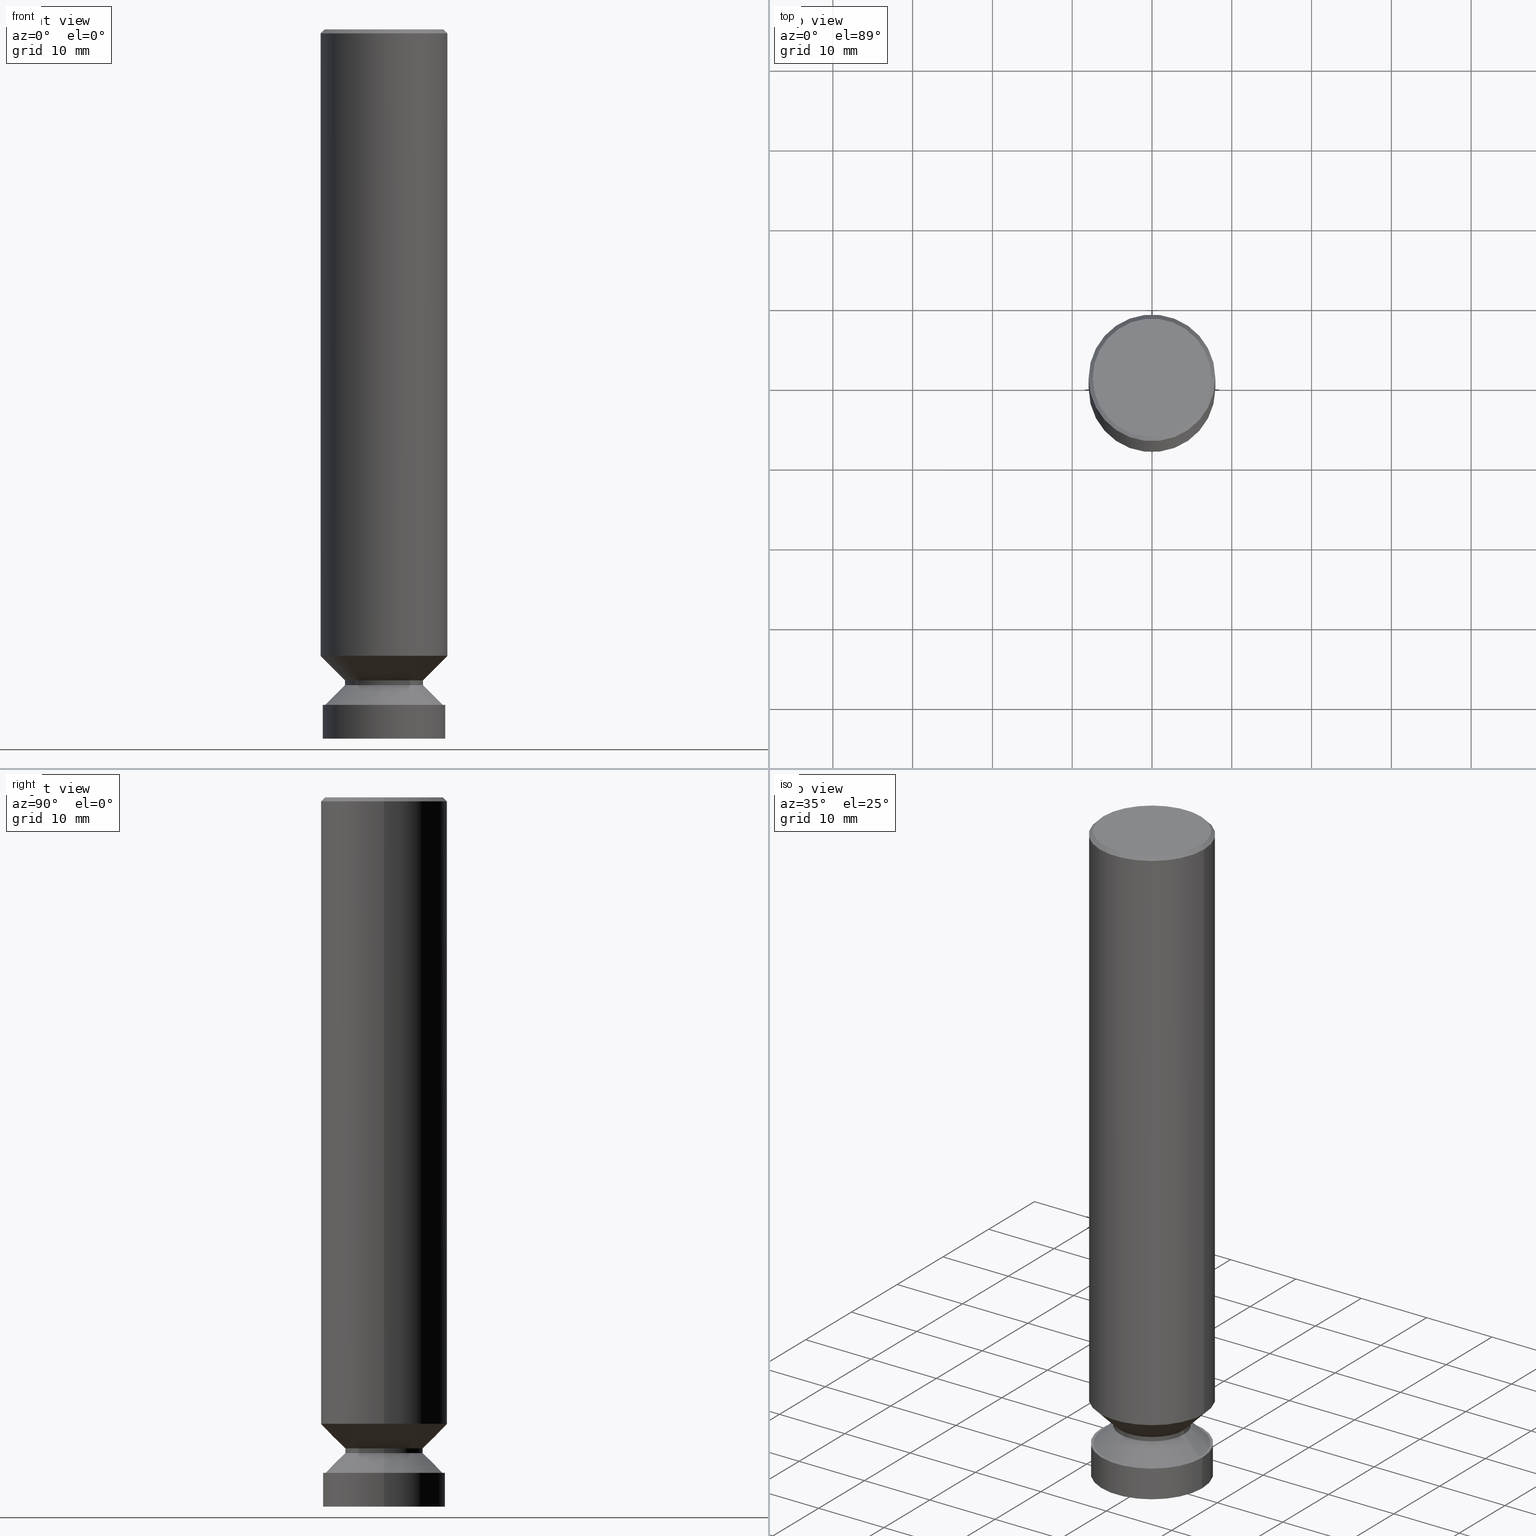
[diagram: canonical four-view strip — front | top / right | iso, engineering-drawing reading convention]
A machine part, canonical four-view strip (front | top / right | iso — engineering-drawing reading convention). The complete STEP part file that produces these views, byte-faithful:
ISO-10303-21;
HEADER;
FILE_DESCRIPTION (( 'STEP AP214' ),
    '1' );
FILE_NAME ('34763.STEP',
    '2023-05-05T20:03:10',
    ( '' ),
    ( '' ),
    'SwSTEP 2.0',
    'SolidWorks 2022',
    '' );
FILE_SCHEMA (( 'AUTOMOTIVE_DESIGN' ));
ENDSEC;

DATA;
#1 = LINE ( 'NONE', #268, #607 ) ;
#2 = CIRCLE ( 'NONE', #584, 0.2924999999999999267 ) ;
#3 = CARTESIAN_POINT ( 'NONE',  ( 7.855333339314627254E-29, -1.121533412948922282E-14, -3.212199362120970125 ) ) ;
#4 = DIRECTION ( 'NONE',  ( -2.445468806185136877E-29, 3.491481338843145188E-15, 1.000000000000000000 ) ) ;
#5 = ORIENTED_EDGE ( 'NONE', *, *, #248, .F. ) ;
#6 = MECHANICAL_DESIGN_GEOMETRIC_PRESENTATION_REPRESENTATION (  '', ( #395 ), #434 ) ;
#7 = CIRCLE ( 'NONE', #803, 0.3125000000000003331 ) ;
#8 = SURFACE_STYLE_USAGE ( .BOTH. , #315 ) ;
#9 =( LENGTH_UNIT ( ) NAMED_UNIT ( * ) SI_UNIT ( $, .METRE. ) );
#10 = LINE ( 'NONE', #708, #456 ) ;
#11 = PRESENTATION_LAYER_ASSIGNMENT (  '', '', ( #636 ) ) ;
#12 = DIMENSIONAL_EXPONENTS ( 1.000000000000000000, 0.000000000000000000, 0.000000000000000000, 0.000000000000000000, 0.000000000000000000, 0.000000000000000000, 0.000000000000000000 ) ;
#13 = ADVANCED_FACE ( 'NONE', ( #812, #514 ), #46, .F. ) ;
#14 = LINE ( 'NONE', #134, #791 ) ;
#15 = LENGTH_MEASURE_WITH_UNIT ( LENGTH_MEASURE( 0.02539999999999999897 ), #650 );
#16 = ORIENTED_EDGE ( 'NONE', *, *, #460, .F. ) ;
#17 = DIMENSIONAL_EXPONENTS ( 1.000000000000000000, 0.000000000000000000, 0.000000000000000000, 0.000000000000000000, 0.000000000000000000, 0.000000000000000000, 0.000000000000000000 ) ;
#18 =( NAMED_UNIT ( * ) PLANE_ANGLE_UNIT ( ) SI_UNIT ( $, .RADIAN. ) );
#19 = FILL_AREA_STYLE_COLOUR ( '', #643 ) ;
#20 = EDGE_LOOP ( 'NONE', ( #205, #27, #535, #239 ) ) ;
#21 = SURFACE_STYLE_FILL_AREA ( #96 ) ;
#22 = VERTEX_POINT ( 'NONE', #438 ) ;
#23 = MECHANICAL_DESIGN_GEOMETRIC_PRESENTATION_REPRESENTATION (  '', ( #384 ), #426 ) ;
#24 = DIRECTION ( 'NONE',  ( 0.7071067811868130271, -2.468850131085038979E-15, 0.7071067811862817853 ) ) ;
#25 = UNCERTAINTY_MEASURE_WITH_UNIT (LENGTH_MEASURE( 1.000000000000000082E-05 ), #133, 'distance_accuracy_value', 'NONE');
#26 = EDGE_CURVE ( 'NONE', #311, #231, #692, .T. ) ;
#27 = ORIENTED_EDGE ( 'NONE', *, *, #38, .T. ) ;
#28 = FACE_OUTER_BOUND ( 'NONE', #20, .T. ) ;
#29 = CARTESIAN_POINT ( 'NONE',  ( 1.675911042644792718E-15, 0.2399999999999882228, -3.499999999999981348 ) ) ;
#30 = CIRCLE ( 'NONE', #285, 0.2895506378790078106 ) ;
#31 = COLOUR_RGB ( '',1.000000000000000000, 1.000000000000000000, 0.000000000000000000 ) ;
#32 = DIRECTION ( 'NONE',  ( -2.445468806185136597E-29, 3.491481338843145583E-15, 1.000000000000000000 ) ) ;
#33 = PRESENTATION_LAYER_ASSIGNMENT (  '', '', ( #141 ) ) ;
#34 = CARTESIAN_POINT ( 'NONE',  ( 0.3115000000000003322, -1.297067637259264524E-14, -3.091949362120980815 ) ) ;
#35 = PRESENTATION_LAYER_ASSIGNMENT (  '', '', ( #405 ) ) ;
#36 =( NAMED_UNIT ( * ) PLANE_ANGLE_UNIT ( ) SI_UNIT ( $, .RADIAN. ) );
#37 = AXIS2_PLACEMENT_3D ( 'NONE', #552, #93, #538 ) ;
#38 = EDGE_CURVE ( 'NONE', #346, #62, #188, .T. ) ;
#39 = COLOUR_RGB ( '',1.000000000000000000, 1.000000000000000000, 0.000000000000000000 ) ;
#40 = CARTESIAN_POINT ( 'NONE',  ( 7.561265715370890335E-29, -1.079548349849337133E-14, -3.091949362120980815 ) ) ;
#41 = DIRECTION ( 'NONE',  ( 1.000000000000000000, -6.982962677686265922E-15, 4.876176775795935793E-29 ) ) ;
#42 = SURFACE_STYLE_FILL_AREA ( #756 ) ;
#43 = CONICAL_SURFACE ( 'NONE', #103, 0.3115000000000003322, 0.7853981633978239785 ) ;
#44 = CARTESIAN_POINT ( 'NONE',  ( 8.150747531015059748E-29, -1.163710730236420348E-14, -3.332999999999999741 ) ) ;
#45 = CARTESIAN_POINT ( 'NONE',  ( 7.855333339314627254E-29, -1.121533412948922282E-14, -3.212199362120970125 ) ) ;
#46 = PLANE ( 'NONE',  #99 ) ;
#47 = DIRECTION ( 'NONE',  ( -2.445468806185136597E-29, 3.491481338843145583E-15, 1.000000000000000000 ) ) ;
#48 =( GEOMETRIC_REPRESENTATION_CONTEXT ( 3 ) GLOBAL_UNCERTAINTY_ASSIGNED_CONTEXT ( ( #503 ) ) GLOBAL_UNIT_ASSIGNED_CONTEXT ( ( #494, #572, #565 ) ) REPRESENTATION_CONTEXT ( 'NONE', 'WORKASPACE' ) );
#49 = SURFACE_SIDE_STYLE ('',( #117 ) ) ;
#50 = EDGE_LOOP ( 'NONE', ( #715, #693 ) ) ;
#51 = CIRCLE ( 'NONE', #160, 0.3125000000000000000 ) ;
#52 = DIRECTION ( 'NONE',  ( -2.445468806185136597E-29, 3.491481338843145583E-15, 1.000000000000000000 ) ) ;
#53 = AXIS2_PLACEMENT_3D ( 'NONE', #360, #242, #109 ) ;
#54 =( NAMED_UNIT ( * ) SI_UNIT ( $, .STERADIAN. ) SOLID_ANGLE_UNIT ( ) );
#55 = UNCERTAINTY_MEASURE_WITH_UNIT (LENGTH_MEASURE( 1.000000000000000082E-05 ), #282, 'distance_accuracy_value', 'NONE');
#56 = ADVANCED_FACE ( 'NONE', ( #816 ), #43, .T. ) ;
#57 = CARTESIAN_POINT ( 'NONE',  ( -0.3115000000000003322, -8.582142876600656891E-15, -3.091949362120980815 ) ) ;
#58 = LENGTH_MEASURE_WITH_UNIT ( LENGTH_MEASURE( 0.02539999999999999897 ), #189 );
#59 = VERTEX_POINT ( 'NONE', #126 ) ;
#60 = ORIENTED_EDGE ( 'NONE', *, *, #613, .T. ) ;
#61 = LENGTH_MEASURE_WITH_UNIT ( LENGTH_MEASURE( 0.02539999999999999897 ), #9 );
#62 = VERTEX_POINT ( 'NONE', #379 ) ;
#63 = STYLED_ITEM ( 'NONE', ( #751 ), #397 ) ;
#64 = PRODUCT_DEFINITION ( 'UNKNOWN', '', #542, #288 ) ;
#65 = DIRECTION ( 'NONE',  ( -2.445468806185136877E-29, 3.491481338843145188E-15, 1.000000000000000000 ) ) ;
#66 = CYLINDRICAL_SURFACE ( 'NONE', #299, 0.3025000000000002132 ) ;
#67 = CARTESIAN_POINT ( 'NONE',  ( -0.1922499999999864595, -9.785047685460940438E-15, -3.235699362120996181 ) ) ;
#68 = VERTEX_POINT ( 'NONE', #497 ) ;
#69 = DIRECTION ( 'NONE',  ( -2.445468806185136597E-29, 3.491481338843145583E-15, 1.000000000000000000 ) ) ;
#70 = DIRECTION ( 'NONE',  ( -2.445468806185136877E-29, 3.491481338843145188E-15, 1.000000000000000000 ) ) ;
#71 = DIRECTION ( 'NONE',  ( 0.7071067811865469066, -7.319954787623254468E-15, -0.7071067811865481278 ) ) ;
#72 = MECHANICAL_DESIGN_GEOMETRIC_PRESENTATION_REPRESENTATION (  '', ( #581 ), #549 ) ;
#73 = CONICAL_SURFACE ( 'NONE', #223, 0.3115000000000003322, 0.7853981633978239785 ) ;
#74 = ADVANCED_FACE ( 'NONE', ( #742 ), #481, .F. ) ;
#75 = CONICAL_SURFACE ( 'NONE', #480, 0.1922500000000000042, 0.7853981633974964627 ) ;
#76 = COLOUR_RGB ( '',1.000000000000000000, 1.000000000000000000, 0.000000000000000000 ) ;
#77 = ORIENTED_EDGE ( 'NONE', *, *, #273, .T. ) ;
#78 = PRESENTATION_STYLE_ASSIGNMENT (( #775 ) ) ;
#79 = SURFACE_STYLE_USAGE ( .BOTH. , #266 ) ;
#80 = ORIENTED_EDGE ( 'NONE', *, *, #449, .T. ) ;
#81 = CARTESIAN_POINT ( 'NONE',  ( 2.042516583223232540E-15, 0.2924999999999999267, -1.023480010969099269E-15 ) ) ;
#82 =( CONVERSION_BASED_UNIT ( 'INCH', #602 ) LENGTH_UNIT ( ) NAMED_UNIT ( #657 ) );
#83 = EDGE_LOOP ( 'NONE', ( #142, #525, #60, #120 ) ) ;
#84 = AXIS2_PLACEMENT_3D ( 'NONE', #260, #772, #640 ) ;
#85 = EDGE_CURVE ( 'NONE', #284, #22, #365, .T. ) ;
#86 = ORIENTED_EDGE ( 'NONE', *, *, #672, .T. ) ;
#87 = CIRCLE ( 'NONE', #526, 0.3125000000000000000 ) ;
#88 =( NAMED_UNIT ( * ) PLANE_ANGLE_UNIT ( ) SI_UNIT ( $, .RADIAN. ) );
#89 = LINE ( 'NONE', #222, #681 ) ;
#90 = UNCERTAINTY_MEASURE_WITH_UNIT (LENGTH_MEASURE( 1.000000000000000082E-05 ), #320, 'distance_accuracy_value', 'NONE');
#91 = CARTESIAN_POINT ( 'NONE',  ( 7.561265715370890335E-29, -1.079548349849337133E-14, -3.091949362120980815 ) ) ;
#92 = SURFACE_STYLE_FILL_AREA ( #337 ) ;
#93 = DIRECTION ( 'NONE',  ( 2.445468806185136597E-29, -3.491481338843145583E-15, -1.000000000000000000 ) ) ;
#94 = EDGE_CURVE ( 'NONE', #280, #276, #14, .T. ) ;
#95 = SURFACE_STYLE_FILL_AREA ( #721 ) ;
#96 = FILL_AREA_STYLE ('',( #795 ) ) ;
#97 = MECHANICAL_DESIGN_GEOMETRIC_PRESENTATION_REPRESENTATION (  '', ( #818 ), #212 ) ;
#98 = STYLED_ITEM ( 'NONE', ( #447 ), #797 ) ;
#99 = AXIS2_PLACEMENT_3D ( 'NONE', #567, #243, #185 ) ;
#100 = DIRECTION ( 'NONE',  ( -1.000000000000000000, 6.982962677686268288E-15, 0.000000000000000000 ) ) ;
#101 = DIRECTION ( 'NONE',  ( -2.445468806185136597E-29, 3.491481338843145583E-15, 1.000000000000000000 ) ) ;
#102 = ORIENTED_EDGE ( 'NONE', *, *, #613, .F. ) ;
#103 = AXIS2_PLACEMENT_3D ( 'NONE', #249, #757, #755 ) ;
#104 = CARTESIAN_POINT ( 'NONE',  ( 0.3125000000000000000, -2.213735251080466911E-15, -0.02000000000000009756 ) ) ;
#105 = FILL_AREA_STYLE ('',( #628 ) ) ;
#106 = EDGE_LOOP ( 'NONE', ( #187, #119 ) ) ;
#107 = CIRCLE ( 'NONE', #363, 0.3025000000000004352 ) ;
#108 = DIRECTION ( 'NONE',  ( 1.000000000000000000, -6.982962677686265133E-15, 0.000000000000000000 ) ) ;
#109 = DIRECTION ( 'NONE',  ( 1.000000000000000000, -6.982962677686266711E-15, 4.876067333457690598E-29 ) ) ;
#110 = COLOUR_RGB ( '',0.7921568627450980005, 0.8196078431372548767, 0.9333333333333333481 ) ;
#111 = ADVANCED_FACE ( 'NONE', ( #468 ), #208, .T. ) ;
#112 =( NAMED_UNIT ( * ) PLANE_ANGLE_UNIT ( ) SI_UNIT ( $, .RADIAN. ) );
#113 = CARTESIAN_POINT ( 'NONE',  ( 8.150747531015059748E-29, -1.163710730236420348E-14, -3.332999999999999741 ) ) ;
#114 =( GEOMETRIC_REPRESENTATION_CONTEXT ( 3 ) GLOBAL_UNCERTAINTY_ASSIGNED_CONTEXT ( ( #357 ) ) GLOBAL_UNIT_ASSIGNED_CONTEXT ( ( #325, #393, #200 ) ) REPRESENTATION_CONTEXT ( 'NONE', 'WORKASPACE' ) );
#115 = SURFACE_STYLE_USAGE ( .BOTH. , #687 ) ;
#116 = COLOUR_RGB ( '',0.7921568627450980005, 0.8196078431372548767, 0.9333333333333333481 ) ;
#117 = SURFACE_STYLE_FILL_AREA ( #105 ) ;
#118 =( GEOMETRIC_REPRESENTATION_CONTEXT ( 3 ) GLOBAL_UNCERTAINTY_ASSIGNED_CONTEXT ( ( #254 ) ) GLOBAL_UNIT_ASSIGNED_CONTEXT ( ( #659, #768, #201 ) ) REPRESENTATION_CONTEXT ( 'NONE', 'WORKASPACE' ) );
#119 = ORIENTED_EDGE ( 'NONE', *, *, #564, .T. ) ;
#120 = ORIENTED_EDGE ( 'NONE', *, *, #316, .F. ) ;
#121 = CARTESIAN_POINT ( 'NONE',  ( 0.1922500000000000042, -1.255780870427440876E-14, -3.212199362120970125 ) ) ;
#122 = FILL_AREA_STYLE_COLOUR ( '', #39 ) ;
#123 =( CONVERSION_BASED_UNIT ( 'INCH', #58 ) LENGTH_UNIT ( ) NAMED_UNIT ( #12 ) );
#124 = VERTEX_POINT ( 'NONE', #195 ) ;
#125 = ADVANCED_FACE ( 'NONE', ( #645 ), #718, .T. ) ;
#126 = CARTESIAN_POINT ( 'NONE',  ( -0.3024999999999999911, -9.779254218483268704E-15, -3.332999999999999741 ) ) ;
#127 = SURFACE_STYLE_FILL_AREA ( #522 ) ;
#128 = FACE_OUTER_BOUND ( 'NONE', #462, .T. ) ;
#129 = VECTOR ( 'NONE', #70, 39.37007874015748143 ) ;
#130 = ORIENTED_EDGE ( 'NONE', *, *, #215, .F. ) ;
#131 = CONICAL_SURFACE ( 'NONE', #197, 0.1922500000000000042, 0.7853981633974964627 ) ;
#132 =( GEOMETRIC_REPRESENTATION_CONTEXT ( 3 ) GLOBAL_UNCERTAINTY_ASSIGNED_CONTEXT ( ( #440 ) ) GLOBAL_UNIT_ASSIGNED_CONTEXT ( ( #168, #354, #674 ) ) REPRESENTATION_CONTEXT ( 'NONE', 'WORKASPACE' ) );
#133 =( CONVERSION_BASED_UNIT ( 'INCH', #383 ) LENGTH_UNIT ( ) NAMED_UNIT ( #595 ) );
#134 = CARTESIAN_POINT ( 'NONE',  ( 0.3125000000000001665, -2.182175836776959530E-15, 1.523805242436230636E-29 ) ) ;
#135 = DIRECTION ( 'NONE',  ( 1.000000000000000000, -6.982962677686265922E-15, 4.876176775795935232E-29 ) ) ;
#136 = CARTESIAN_POINT ( 'NONE',  ( 0.000000000000000000, 0.000000000000000000, 0.000000000000000000 ) ) ;
#137 = FILL_AREA_STYLE ('',( #389 ) ) ;
#138 = CIRCLE ( 'NONE', #648, 0.3024999999999999911 ) ;
#139 = EDGE_CURVE ( 'NONE', #346, #467, #618, .T. ) ;
#140 = DIMENSIONAL_EXPONENTS ( 1.000000000000000000, 0.000000000000000000, 0.000000000000000000, 0.000000000000000000, 0.000000000000000000, 0.000000000000000000, 0.000000000000000000 ) ;
#141 = STYLED_ITEM ( 'NONE', ( #228 ), #166 ) ;
#142 = ORIENTED_EDGE ( 'NONE', *, *, #489, .F. ) ;
#143 = CARTESIAN_POINT ( 'NONE',  ( 4.890937612370297681E-31, -6.982962677686324889E-17, -0.02000000000000009756 ) ) ;
#144 = LINE ( 'NONE', #697, #129 ) ;
#145 = DIRECTION ( 'NONE',  ( 2.445468806185136597E-29, -3.491481338843145583E-15, -1.000000000000000000 ) ) ;
#146 = AXIS2_PLACEMENT_3D ( 'NONE', #210, #145, #328 ) ;
#147 = PRESENTATION_LAYER_ASSIGNMENT (  '', '', ( #216 ) ) ;
#148 = VERTEX_POINT ( 'NONE', #785 ) ;
#149 = COLOUR_RGB ( '',1.000000000000000000, 1.000000000000000000, 0.000000000000000000 ) ;
#150 = CARTESIAN_POINT ( 'NONE',  ( 0.000000000000000000, 0.000000000000000000, 0.000000000000000000 ) ) ;
#151 = DIRECTION ( 'NONE',  ( 1.000000000000000000, -6.982962677686268288E-15, 0.000000000000000000 ) ) ;
#152 = DIRECTION ( 'NONE',  ( 1.000000000000000000, 0.000000000000000000, 0.000000000000000000 ) ) ;
#153 = EDGE_LOOP ( 'NONE', ( #398, #86, #707, #377 ) ) ;
#154 = SURFACE_STYLE_FILL_AREA ( #794 ) ;
#155 = CARTESIAN_POINT ( 'NONE',  ( 0.000000000000000000, 0.000000000000000000, 0.000000000000000000 ) ) ;
#156 = VECTOR ( 'NONE', #694, 39.37007874015748143 ) ;
#157 =( NAMED_UNIT ( * ) SI_UNIT ( $, .STERADIAN. ) SOLID_ANGLE_UNIT ( ) );
#158 = UNCERTAINTY_MEASURE_WITH_UNIT (LENGTH_MEASURE( 1.000000000000000082E-05 ), #771, 'distance_accuracy_value', 'NONE');
#159 = ORIENTED_EDGE ( 'NONE', *, *, #489, .T. ) ;
#160 = AXIS2_PLACEMENT_3D ( 'NONE', #528, #763, #192 ) ;
#161 = LENGTH_MEASURE_WITH_UNIT ( LENGTH_MEASURE( 0.02539999999999999897 ), #601 );
#162 = CIRCLE ( 'NONE', #199, 0.3125000000000000000 ) ;
#163 =( NAMED_UNIT ( * ) PLANE_ANGLE_UNIT ( ) SI_UNIT ( $, .RADIAN. ) );
#164 =( CONVERSION_BASED_UNIT ( 'INCH', #161 ) LENGTH_UNIT ( ) NAMED_UNIT ( #140 ) );
#165 = ADVANCED_FACE ( 'NONE', ( #167 ), #75, .T. ) ;
#166 = MANIFOLD_SOLID_BREP ( 'Body-Move/Copy2[1]', #227 ) ;
#167 = FACE_OUTER_BOUND ( 'NONE', #710, .T. ) ;
#168 =( CONVERSION_BASED_UNIT ( 'INCH', #684 ) LENGTH_UNIT ( ) NAMED_UNIT ( #206 ) );
#169 = DIRECTION ( 'NONE',  ( 1.000000000000000000, -6.982962677686269077E-15, 0.000000000000000000 ) ) ;
#170 = PRESENTATION_STYLE_ASSIGNMENT (( #183 ) ) ;
#171 = ORIENTED_EDGE ( 'NONE', *, *, #714, .T. ) ;
#172 =( LENGTH_UNIT ( ) NAMED_UNIT ( * ) SI_UNIT ( $, .METRE. ) );
#173 = UNCERTAINTY_MEASURE_WITH_UNIT (LENGTH_MEASURE( 1.000000000000000082E-05 ), #801, 'distance_accuracy_value', 'NONE');
#174 = PRESENTATION_LAYER_ASSIGNMENT (  '', '', ( #384 ) ) ;
#175 = FILL_AREA_STYLE_COLOUR ( '', #761 ) ;
#176 = DIRECTION ( 'NONE',  ( 1.000000000000000000, -6.982962677686265133E-15, 0.000000000000000000 ) ) ;
#177 = SURFACE_SIDE_STYLE ('',( #374 ) ) ;
#178 = SURFACE_STYLE_USAGE ( .BOTH. , #235 ) ;
#179 = EDGE_CURVE ( 'NONE', #231, #311, #817, .T. ) ;
#180 = LENGTH_MEASURE_WITH_UNIT ( LENGTH_MEASURE( 0.02539999999999999897 ), #246 );
#181 = LENGTH_MEASURE_WITH_UNIT ( LENGTH_MEASURE( 0.02539999999999999897 ), #680 );
#182 = AXIS2_PLACEMENT_3D ( 'NONE', #407, #283, #151 ) ;
#183 = SURFACE_STYLE_USAGE ( .BOTH. , #670 ) ;
#184 = AXIS2_PLACEMENT_3D ( 'NONE', #44, #559, #799 ) ;
#185 = DIRECTION ( 'NONE',  ( -1.000000000000000000, 6.982962677686265922E-15, -4.876176775795935793E-29 ) ) ;
#186 = FILL_AREA_STYLE_COLOUR ( '', #702 ) ;
#187 = ORIENTED_EDGE ( 'NONE', *, *, #330, .T. ) ;
#188 = LINE ( 'NONE', #57, #326 ) ;
#189 =( LENGTH_UNIT ( ) NAMED_UNIT ( * ) SI_UNIT ( $, .METRE. ) );
#190 = EDGE_CURVE ( 'NONE', #760, #311, #277, .T. ) ;
#191 = ORIENTED_EDGE ( 'NONE', *, *, #691, .F. ) ;
#192 = DIRECTION ( 'NONE',  ( 1.000000000000000000, -6.982962677686269077E-15, 0.000000000000000000 ) ) ;
#193 = ORIENTED_EDGE ( 'NONE', *, *, #190, .F. ) ;
#194 = APPLICATION_CONTEXT ( 'automotive_design' ) ;
#195 = CARTESIAN_POINT ( 'NONE',  ( 0.3025000000000004352, -1.433253089595104128E-14, -3.499999999999980016 ) ) ;
#196 = SURFACE_STYLE_USAGE ( .BOTH. , #256 ) ;
#197 = AXIS2_PLACEMENT_3D ( 'NONE', #232, #631, #301 ) ;
#198 = ORIENTED_EDGE ( 'NONE', *, *, #706, .T. ) ;
#199 = AXIS2_PLACEMENT_3D ( 'NONE', #748, #566, #495 ) ;
#200 =( NAMED_UNIT ( * ) SI_UNIT ( $, .STERADIAN. ) SOLID_ANGLE_UNIT ( ) );
#201 =( NAMED_UNIT ( * ) SI_UNIT ( $, .STERADIAN. ) SOLID_ANGLE_UNIT ( ) );
#202 = ORIENTED_EDGE ( 'NONE', *, *, #814, .T. ) ;
#203 = ADVANCED_FACE ( 'NONE', ( #28 ), #73, .T. ) ;
#204 = SURFACE_SIDE_STYLE ('',( #403 ) ) ;
#205 = ORIENTED_EDGE ( 'NONE', *, *, #215, .T. ) ;
#206 = DIMENSIONAL_EXPONENTS ( 1.000000000000000000, 0.000000000000000000, 0.000000000000000000, 0.000000000000000000, 0.000000000000000000, 0.000000000000000000, 0.000000000000000000 ) ;
#207 = CARTESIAN_POINT ( 'NONE',  ( 0.000000000000000000, 0.000000000000000000, 0.000000000000000000 ) ) ;
#208 = CYLINDRICAL_SURFACE ( 'NONE', #753, 0.3125000000000001665 ) ;
#209 = LINE ( 'NONE', #446, #339 ) ;
#210 = CARTESIAN_POINT ( 'NONE',  ( 1.047860920863443370E-27, -1.496067683073414526E-13, -42.84908146091126468 ) ) ;
#211 = VERTEX_POINT ( 'NONE', #615 ) ;
#212 =( GEOMETRIC_REPRESENTATION_CONTEXT ( 3 ) GLOBAL_UNCERTAINTY_ASSIGNED_CONTEXT ( ( #569 ) ) GLOBAL_UNIT_ASSIGNED_CONTEXT ( ( #568, #690, #571 ) ) REPRESENTATION_CONTEXT ( 'NONE', 'WORKASPACE' ) );
#213 = FILL_AREA_STYLE_COLOUR ( '', #149 ) ;
#214 = PRESENTATION_LAYER_ASSIGNMENT (  '', '', ( #469 ) ) ;
#215 = EDGE_CURVE ( 'NONE', #467, #346, #788, .T. ) ;
#216 = STYLED_ITEM ( 'NONE', ( #501 ), #13 ) ;
#217 = VERTEX_POINT ( 'NONE', #570 ) ;
#218 = SURFACE_SIDE_STYLE ('',( #95 ) ) ;
#219 = LENGTH_MEASURE_WITH_UNIT ( LENGTH_MEASURE( 0.02539999999999999897 ), #490 );
#220 = EDGE_LOOP ( 'NONE', ( #660, #557, #171, #605 ) ) ;
#221 =( NAMED_UNIT ( * ) SI_UNIT ( $, .STERADIAN. ) SOLID_ANGLE_UNIT ( ) );
#222 = CARTESIAN_POINT ( 'NONE',  ( -0.1922500000000000042, -9.849315719990429988E-15, -3.212199362120970125 ) ) ;
#223 = AXIS2_PLACEMENT_3D ( 'NONE', #91, #350, #286 ) ;
#224 = UNCERTAINTY_MEASURE_WITH_UNIT (LENGTH_MEASURE( 1.000000000000000082E-05 ), #270, 'distance_accuracy_value', 'NONE');
#225 = COLOUR_RGB ( '',1.000000000000000000, 1.000000000000000000, 0.000000000000000000 ) ;
#226 =( NAMED_UNIT ( * ) SI_UNIT ( $, .STERADIAN. ) SOLID_ANGLE_UNIT ( ) );
#227 = CLOSED_SHELL ( 'NONE', ( #74, #165, #125, #385, #797, #516, #504, #13, #263, #629, #397, #639, #776 ) ) ;
#228 = PRESENTATION_STYLE_ASSIGNMENT (( #733 ) ) ;
#229 = FACE_OUTER_BOUND ( 'NONE', #50, .T. ) ;
#230 =( LENGTH_UNIT ( ) NAMED_UNIT ( * ) SI_UNIT ( $, .METRE. ) );
#231 = VERTEX_POINT ( 'NONE', #633 ) ;
#232 = CARTESIAN_POINT ( 'NONE',  ( 7.855333339314627254E-29, -1.121533412948922282E-14, -3.212199362120970125 ) ) ;
#233 = DIRECTION ( 'NONE',  ( -0.9961946980917532057, 6.652087747107499491E-15, -0.08715574274756897333 ) ) ;
#234 = CARTESIAN_POINT ( 'NONE',  ( 8.559140821647929884E-29, -1.222018468595094150E-14, -3.499999999999980016 ) ) ;
#235 = SURFACE_SIDE_STYLE ('',( #306 ) ) ;
#236 = AXIS2_PLACEMENT_3D ( 'NONE', #432, #47, #746 ) ;
#237 = EDGE_CURVE ( 'NONE', #760, #231, #623, .T. ) ;
#238 = MECHANICAL_DESIGN_GEOMETRIC_PRESENTATION_REPRESENTATION (  '', ( #769 ), #132 ) ;
#239 = ORIENTED_EDGE ( 'NONE', *, *, #544, .F. ) ;
#240 = CARTESIAN_POINT ( 'NONE',  ( 7.558820246564705853E-29, -1.079199201715452990E-14, -3.090949362120981370 ) ) ;
#241 = LINE ( 'NONE', #747, #682 ) ;
#242 = DIRECTION ( 'NONE',  ( -2.445468806185136597E-29, 3.491481338843145583E-15, 1.000000000000000000 ) ) ;
#243 = DIRECTION ( 'NONE',  ( 2.438088387897960049E-29, -3.491481338843145188E-15, -1.000000000000000000 ) ) ;
#244 = UNCERTAINTY_MEASURE_WITH_UNIT (LENGTH_MEASURE( 1.000000000000000082E-05 ), #123, 'distance_accuracy_value', 'NONE');
#245 = VECTOR ( 'NONE', #24, 39.37007874015748854 ) ;
#246 =( LENGTH_UNIT ( ) NAMED_UNIT ( * ) SI_UNIT ( $, .METRE. ) );
#247 = CARTESIAN_POINT ( 'NONE',  ( 7.561265715370890335E-29, -1.079548349849337133E-14, -3.091949362120980815 ) ) ;
#248 = EDGE_CURVE ( 'NONE', #217, #705, #663, .T. ) ;
#249 = CARTESIAN_POINT ( 'NONE',  ( 7.561265715370890335E-29, -1.079548349849337133E-14, -3.091949362120980815 ) ) ;
#250 = AXIS2_PLACEMENT_3D ( 'NONE', #150, #69, #641 ) ;
#251 = CARTESIAN_POINT ( 'NONE',  ( 0.2924999999999999267, -2.110215457714319931E-15, -4.443438714944215967E-18 ) ) ;
#252 = DIRECTION ( 'NONE',  ( -0.7071067811868130271, 7.493145998871311837E-15, 0.7071067811862817853 ) ) ;
#253 = DIRECTION ( 'NONE',  ( -2.445468806185136597E-29, 3.491481338843145583E-15, 1.000000000000000000 ) ) ;
#254 = UNCERTAINTY_MEASURE_WITH_UNIT (LENGTH_MEASURE( 1.000000000000000082E-05 ), #659, 'distance_accuracy_value', 'NONE');
#255 = ORIENTED_EDGE ( 'NONE', *, *, #449, .F. ) ;
#256 = SURFACE_SIDE_STYLE ('',( #579 ) ) ;
#257 = ORIENTED_EDGE ( 'NONE', *, *, #38, .F. ) ;
#258 = MECHANICAL_DESIGN_GEOMETRIC_PRESENTATION_REPRESENTATION (  '', ( #433 ), #48 ) ;
#259 = FILL_AREA_STYLE ('',( #400 ) ) ;
#260 = CARTESIAN_POINT ( 'NONE',  ( 7.912801856260040491E-29, -1.129738394095212894E-14, -3.235699362120996181 ) ) ;
#261 = PRESENTATION_LAYER_ASSIGNMENT (  '', '', ( #395 ) ) ;
#262 = PRESENTATION_LAYER_ASSIGNMENT (  '', '', ( #482 ) ) ;
#263 = ADVANCED_FACE ( 'NONE', ( #500 ), #297, .T. ) ;
#264 = AXIS2_PLACEMENT_3D ( 'NONE', #247, #620, #41 ) ;
#265 = DIRECTION ( 'NONE',  ( 1.000000000000000000, -6.982962677686268288E-15, 0.000000000000000000 ) ) ;
#266 = SURFACE_SIDE_STYLE ('',( #534 ) ) ;
#267 = EDGE_LOOP ( 'NONE', ( #764, #473, #699, #664 ) ) ;
#268 = CARTESIAN_POINT ( 'NONE',  ( -0.3025000000000002132, 2.149391775674304577E-15, -1.487977864802109852E-29 ) ) ;
#269 = DIMENSIONAL_EXPONENTS ( 1.000000000000000000, 0.000000000000000000, 0.000000000000000000, 0.000000000000000000, 0.000000000000000000, 0.000000000000000000, 0.000000000000000000 ) ;
#270 =( CONVERSION_BASED_UNIT ( 'INCH', #529 ) LENGTH_UNIT ( ) NAMED_UNIT ( #275 ) );
#271 = ORIENTED_EDGE ( 'NONE', *, *, #415, .F. ) ;
#272 =( CONVERSION_BASED_UNIT ( 'INCH', #701 ) LENGTH_UNIT ( ) NAMED_UNIT ( #459 ) );
#273 = EDGE_CURVE ( 'NONE', #124, #695, #358, .T. ) ;
#274 = CARTESIAN_POINT ( 'NONE',  ( -0.2895506378790078106, -9.615186004754840058E-15, -3.332999999999999741 ) ) ;
#275 = DIMENSIONAL_EXPONENTS ( 1.000000000000000000, 0.000000000000000000, 0.000000000000000000, 0.000000000000000000, 0.000000000000000000, 0.000000000000000000, 0.000000000000000000 ) ;
#276 = VERTEX_POINT ( 'NONE', #104 ) ;
#277 = LINE ( 'NONE', #669, #685 ) ;
#278 = PLANE ( 'NONE',  #391 ) ;
#279 = AXIS2_PLACEMENT_3D ( 'NONE', #136, #390, #598 ) ;
#280 = VERTEX_POINT ( 'NONE', #683 ) ;
#281 = DIMENSIONAL_EXPONENTS ( 1.000000000000000000, 0.000000000000000000, 0.000000000000000000, 0.000000000000000000, 0.000000000000000000, 0.000000000000000000, 0.000000000000000000 ) ;
#282 =( CONVERSION_BASED_UNIT ( 'INCH', #546 ) LENGTH_UNIT ( ) NAMED_UNIT ( #281 ) );
#283 = DIRECTION ( 'NONE',  ( -2.445468806185136597E-29, 3.491481338843145583E-15, 1.000000000000000000 ) ) ;
#284 = VERTEX_POINT ( 'NONE', #121 ) ;
#285 = AXIS2_PLACEMENT_3D ( 'NONE', #348, #287, #543 ) ;
#286 = DIRECTION ( 'NONE',  ( 1.000000000000000000, -6.982962677686265133E-15, 0.000000000000000000 ) ) ;
#287 = DIRECTION ( 'NONE',  ( -2.445468806185136597E-29, 3.491481338843145583E-15, 1.000000000000000000 ) ) ;
#288 = PRODUCT_DEFINITION_CONTEXT ( 'detailed design', #194, 'design' ) ;
#289 = EDGE_CURVE ( 'NONE', #124, #211, #107, .T. ) ;
#290 = AXIS2_PLACEMENT_3D ( 'NONE', #766, #762, #532 ) ;
#291 = SURFACE_STYLE_USAGE ( .BOTH. , #218 ) ;
#292 = FILL_AREA_STYLE_COLOUR ( '', #110 ) ;
#293 = CARTESIAN_POINT ( 'NONE',  ( 8.559140821647929884E-29, -1.222018468595094150E-14, -3.499999999999980016 ) ) ;
#294 = CARTESIAN_POINT ( 'NONE',  ( 2.182175836777033683E-15, 0.3124999999999892308, -3.091949362120983036 ) ) ;
#295 = PRODUCT_RELATED_PRODUCT_CATEGORY ( 'part', '', ( #333 ) ) ;
#296 = ORIENTED_EDGE ( 'NONE', *, *, #349, .F. ) ;
#297 = CONICAL_SURFACE ( 'NONE', #477, 0.2895506378790078106, 0.7853981633975409826 ) ;
#298 = CARTESIAN_POINT ( 'NONE',  ( 7.561265715370891456E-29, -1.079548349849337449E-14, -3.091949362120981704 ) ) ;
#299 = AXIS2_PLACEMENT_3D ( 'NONE', #458, #253, #135 ) ;
#300 = VERTEX_POINT ( 'NONE', #251 ) ;
#301 = DIRECTION ( 'NONE',  ( 1.000000000000000000, -6.982962677686265133E-15, 0.000000000000000000 ) ) ;
#302 = UNCERTAINTY_MEASURE_WITH_UNIT (LENGTH_MEASURE( 1.000000000000000082E-05 ), #474, 'distance_accuracy_value', 'NONE');
#303 = CIRCLE ( 'NONE', #485, 0.1922500000000000042 ) ;
#304 = FILL_AREA_STYLE ('',( #175 ) ) ;
#305 =( NAMED_UNIT ( * ) SI_UNIT ( $, .STERADIAN. ) SOLID_ANGLE_UNIT ( ) );
#306 = SURFACE_STYLE_FILL_AREA ( #429 ) ;
#307 = EDGE_CURVE ( 'NONE', #300, #68, #2, .T. ) ;
#308 = ORIENTED_EDGE ( 'NONE', *, *, #248, .T. ) ;
#309 = ORIENTED_EDGE ( 'NONE', *, *, #85, .F. ) ;
#310 = CARTESIAN_POINT ( 'NONE',  ( 8.507792630236588623E-29, -1.214687307729635313E-14, -3.479002720753780142 ) ) ;
#311 = VERTEX_POINT ( 'NONE', #366 ) ;
#312 = SURFACE_STYLE_FILL_AREA ( #451 ) ;
#313 = FACE_BOUND ( 'NONE', #644, .T. ) ;
#314 = ORIENTED_EDGE ( 'NONE', *, *, #179, .F. ) ;
#315 = SURFACE_SIDE_STYLE ('',( #312 ) ) ;
#316 = EDGE_CURVE ( 'NONE', #798, #560, #241, .T. ) ;
#317 = FILL_AREA_STYLE ('',( #332 ) ) ;
#318 = CIRCLE ( 'NONE', #182, 0.2895506378790078106 ) ;
#319 = CIRCLE ( 'NONE', #184, 0.3024999999999999911 ) ;
#320 =( CONVERSION_BASED_UNIT ( 'INCH', #15 ) LENGTH_UNIT ( ) NAMED_UNIT ( #399 ) );
#321 = MECHANICAL_DESIGN_GEOMETRIC_PRESENTATION_REPRESENTATION (  '', ( #654 ), #752 ) ;
#322 = AXIS2_PLACEMENT_3D ( 'NONE', #3, #536, #457 ) ;
#323 = SURFACE_STYLE_USAGE ( .BOTH. , #204 ) ;
#324 = MECHANICAL_DESIGN_GEOMETRIC_PRESENTATION_REPRESENTATION (  '', ( #98 ), #118 ) ;
#325 =( CONVERSION_BASED_UNIT ( 'INCH', #61 ) LENGTH_UNIT ( ) NAMED_UNIT ( #17 ) );
#326 = VECTOR ( 'NONE', #252, 39.37007874015748854 ) ;
#327 = DIMENSIONAL_EXPONENTS ( 1.000000000000000000, 0.000000000000000000, 0.000000000000000000, 0.000000000000000000, 0.000000000000000000, 0.000000000000000000, 0.000000000000000000 ) ;
#328 = DIRECTION ( 'NONE',  ( -1.000000000000000000, 6.982962677686266711E-15, 0.000000000000000000 ) ) ;
#329 = EDGE_LOOP ( 'NONE', ( #425, #696, #539, #625 ) ) ;
#330 = EDGE_CURVE ( 'NONE', #695, #59, #319, .T. ) ;
#331 = SURFACE_STYLE_FILL_AREA ( #259 ) ;
#332 = FILL_AREA_STYLE_COLOUR ( '', #741 ) ;
#333 = PRODUCT ( '34763', '34763', '', ( #792 ) ) ;
#334 = ORIENTED_EDGE ( 'NONE', *, *, #289, .F. ) ;
#335 = DIMENSIONAL_EXPONENTS ( 1.000000000000000000, 0.000000000000000000, 0.000000000000000000, 0.000000000000000000, 0.000000000000000000, 0.000000000000000000, 0.000000000000000000 ) ;
#336 = DIRECTION ( 'NONE',  ( -2.445468806185136597E-29, 3.491481338843145583E-15, 1.000000000000000000 ) ) ;
#337 = FILL_AREA_STYLE ('',( #724 ) ) ;
#338 = ORIENTED_EDGE ( 'NONE', *, *, #814, .F. ) ;
#339 = VECTOR ( 'NONE', #4, 39.37007874015748143 ) ;
#340 = DIMENSIONAL_EXPONENTS ( 1.000000000000000000, 0.000000000000000000, 0.000000000000000000, 0.000000000000000000, 0.000000000000000000, 0.000000000000000000, 0.000000000000000000 ) ;
#341 = PRESENTATION_LAYER_ASSIGNMENT (  '', '', ( #818 ) ) ;
#342 = FACE_OUTER_BOUND ( 'NONE', #630, .T. ) ;
#343 = AXIS2_PLACEMENT_3D ( 'NONE', #510, #736, #428 ) ;
#344 =( NAMED_UNIT ( * ) PLANE_ANGLE_UNIT ( ) SI_UNIT ( $, .RADIAN. ) );
#345 = UNCERTAINTY_MEASURE_WITH_UNIT (LENGTH_MEASURE( 1.000000000000000082E-05 ), #164, 'distance_accuracy_value', 'NONE');
#346 = VERTEX_POINT ( 'NONE', #439 ) ;
#347 = CARTESIAN_POINT ( 'NONE',  ( 8.559140821647929884E-29, -1.222018468595094150E-14, -3.499999999999980016 ) ) ;
#348 = CARTESIAN_POINT ( 'NONE',  ( 8.150747531015059748E-29, -1.163710730236420348E-14, -3.332999999999999741 ) ) ;
#349 = EDGE_CURVE ( 'NONE', #798, #577, #381, .T. ) ;
#350 = DIRECTION ( 'NONE',  ( -2.445468806185136597E-29, 3.491481338843145583E-15, 1.000000000000000000 ) ) ;
#351 = DIRECTION ( 'NONE',  ( 1.000000000000000000, -6.982962677686265922E-15, 4.876176775795935232E-29 ) ) ;
#352 =( GEOMETRIC_REPRESENTATION_CONTEXT ( 3 ) GLOBAL_UNCERTAINTY_ASSIGNED_CONTEXT ( ( #55 ) ) GLOBAL_UNIT_ASSIGNED_CONTEXT ( ( #282, #163, #221 ) ) REPRESENTATION_CONTEXT ( 'NONE', 'WORKASPACE' ) );
#353 = CARTESIAN_POINT ( 'NONE',  ( 7.855333339314627254E-29, -1.121533412948922282E-14, -3.212199362120970125 ) ) ;
#354 =( NAMED_UNIT ( * ) PLANE_ANGLE_UNIT ( ) SI_UNIT ( $, .RADIAN. ) );
#355 = EDGE_CURVE ( 'NONE', #68, #148, #502, .T. ) ;
#356 = ORIENTED_EDGE ( 'NONE', *, *, #139, .F. ) ;
#357 = UNCERTAINTY_MEASURE_WITH_UNIT (LENGTH_MEASURE( 1.000000000000000082E-05 ), #325, 'distance_accuracy_value', 'NONE');
#358 = LINE ( 'NONE', #371, #156 ) ;
#359 = COLOUR_RGB ( '',1.000000000000000000, 1.000000000000000000, 0.000000000000000000 ) ;
#360 = CARTESIAN_POINT ( 'NONE',  ( 1.086629076962696211E-46, -1.551418335357160018E-32, -4.443438714958737479E-18 ) ) ;
#361 = ORIENTED_EDGE ( 'NONE', *, *, #355, .T. ) ;
#362 = LENGTH_MEASURE_WITH_UNIT ( LENGTH_MEASURE( 0.02539999999999999897 ), #172 );
#363 = AXIS2_PLACEMENT_3D ( 'NONE', #293, #52, #810 ) ;
#364 = PRESENTATION_LAYER_ASSIGNMENT (  '', '', ( #654 ) ) ;
#365 = CIRCLE ( 'NONE', #322, 0.1922500000000000042 ) ;
#366 = CARTESIAN_POINT ( 'NONE',  ( 0.2400000000000006295, -1.386670420541611103E-14, -3.499999999999980016 ) ) ;
#367 = CARTESIAN_POINT ( 'NONE',  ( -0.3125000000000001665, 2.220446049250314264E-15, -1.537167215704658792E-29 ) ) ;
#368 = VECTOR ( 'NONE', #563, 39.37007874015748143 ) ;
#369 =( NAMED_UNIT ( * ) PLANE_ANGLE_UNIT ( ) SI_UNIT ( $, .RADIAN. ) );
#370 = AXIS2_PLACEMENT_3D ( 'NONE', #479, #725, #152 ) ;
#371 = CARTESIAN_POINT ( 'NONE',  ( 0.3025000000000002132, -2.112346210000097021E-15, 1.475043474678271390E-29 ) ) ;
#372 = EDGE_LOOP ( 'NONE', ( #443, #198, #202, #255 ) ) ;
#373 = DIRECTION ( 'NONE',  ( -2.445468806185136597E-29, 3.491481338843145583E-15, 1.000000000000000000 ) ) ;
#374 = SURFACE_STYLE_FILL_AREA ( #750 ) ;
#375 = DIRECTION ( 'NONE',  ( -0.7071067811865469066, 2.468850131082250355E-15, -0.7071067811865481278 ) ) ;
#376 = ADVANCED_BREP_SHAPE_REPRESENTATION ( '34763', ( #166, #727, #370 ), #821 ) ;
#377 = ORIENTED_EDGE ( 'NONE', *, *, #94, .F. ) ;
#378 = CYLINDRICAL_SURFACE ( 'NONE', #704, 0.3125000000000001665 ) ;
#379 = CARTESIAN_POINT ( 'NONE',  ( -0.3125000000000003331, -3.210464772715377996E-15, -3.090949362120981370 ) ) ;
#380 =( LENGTH_UNIT ( ) NAMED_UNIT ( * ) SI_UNIT ( $, .METRE. ) );
#381 = CIRCLE ( 'NONE', #236, 0.1922499999999864595 ) ;
#382 = ORIENTED_EDGE ( 'NONE', *, *, #789, .F. ) ;
#383 = LENGTH_MEASURE_WITH_UNIT ( LENGTH_MEASURE( 0.02539999999999999897 ), #745 );
#384 = STYLED_ITEM ( 'NONE', ( #759 ), #776 ) ;
#385 = ADVANCED_FACE ( 'NONE', ( #743 ), #496, .T. ) ;
#386 = DIRECTION ( 'NONE',  ( 1.000000000000000000, -6.982962677686266711E-15, 4.876176775795935232E-29 ) ) ;
#387 = DIRECTION ( 'NONE',  ( 2.445468806185136597E-29, -3.491481338843145583E-15, -1.000000000000000000 ) ) ;
#388 = DIRECTION ( 'NONE',  ( -2.445468806185136597E-29, 3.491481338843145583E-15, 1.000000000000000000 ) ) ;
#389 = FILL_AREA_STYLE_COLOUR ( '', #493 ) ;
#390 = DIRECTION ( 'NONE',  ( -2.445468806185136597E-29, 3.491481338843145583E-15, 1.000000000000000000 ) ) ;
#391 = AXIS2_PLACEMENT_3D ( 'NONE', #81, #611, #488 ) ;
#392 =( NAMED_UNIT ( * ) PLANE_ANGLE_UNIT ( ) SI_UNIT ( $, .RADIAN. ) );
#393 =( NAMED_UNIT ( * ) PLANE_ANGLE_UNIT ( ) SI_UNIT ( $, .RADIAN. ) );
#394 = AXIS2_PLACEMENT_3D ( 'NONE', #550, #619, #483 ) ;
#395 = STYLED_ITEM ( 'NONE', ( #78 ), #125 ) ;
#396 =( NAMED_UNIT ( * ) SI_UNIT ( $, .STERADIAN. ) SOLID_ANGLE_UNIT ( ) );
#397 = ADVANCED_FACE ( 'NONE', ( #813 ), #131, .T. ) ;
#398 = ORIENTED_EDGE ( 'NONE', *, *, #421, .T. ) ;
#399 = DIMENSIONAL_EXPONENTS ( 1.000000000000000000, 0.000000000000000000, 0.000000000000000000, 0.000000000000000000, 0.000000000000000000, 0.000000000000000000, 0.000000000000000000 ) ;
#400 = FILL_AREA_STYLE_COLOUR ( '', #76 ) ;
#401 =( GEOMETRIC_REPRESENTATION_CONTEXT ( 3 ) GLOBAL_UNCERTAINTY_ASSIGNED_CONTEXT ( ( #25 ) ) GLOBAL_UNIT_ASSIGNED_CONTEXT ( ( #133, #450, #573 ) ) REPRESENTATION_CONTEXT ( 'NONE', 'WORKASPACE' ) );
#402 = FACE_OUTER_BOUND ( 'NONE', #329, .T. ) ;
#403 = SURFACE_STYLE_FILL_AREA ( #453 ) ;
#404 = ORIENTED_EDGE ( 'NONE', *, *, #179, .T. ) ;
#405 = STYLED_ITEM ( 'NONE', ( #518 ), #74 ) ;
#406 = DIMENSIONAL_EXPONENTS ( 1.000000000000000000, 0.000000000000000000, 0.000000000000000000, 0.000000000000000000, 0.000000000000000000, 0.000000000000000000, 0.000000000000000000 ) ;
#407 = CARTESIAN_POINT ( 'NONE',  ( 8.150747531015059748E-29, -1.163710730236420348E-14, -3.332999999999999741 ) ) ;
#408 = ORIENTED_EDGE ( 'NONE', *, *, #554, .T. ) ;
#409 = AXIS2_PLACEMENT_3D ( 'NONE', #40, #815, #108 ) ;
#410 = SURFACE_SIDE_STYLE ('',( #154 ) ) ;
#411 = DIRECTION ( 'NONE',  ( -2.445468806185136597E-29, 3.491481338843145583E-15, 1.000000000000000000 ) ) ;
#412 = APPLICATION_CONTEXT ( 'automotive_design' ) ;
#413 = ORIENTED_EDGE ( 'NONE', *, *, #85, .T. ) ;
#414 = STYLED_ITEM ( 'NONE', ( #593 ), #516 ) ;
#415 = EDGE_CURVE ( 'NONE', #577, #778, #635, .T. ) ;
#416 = CYLINDRICAL_SURFACE ( 'NONE', #787, 0.1922499999999932041 ) ;
#417 = PRESENTATION_LAYER_ASSIGNMENT (  '', '', ( #769 ) ) ;
#418 =( LENGTH_UNIT ( ) NAMED_UNIT ( * ) SI_UNIT ( $, .METRE. ) );
#419 =( NAMED_UNIT ( * ) SI_UNIT ( $, .STERADIAN. ) SOLID_ANGLE_UNIT ( ) );
#420 = FILL_AREA_STYLE_COLOUR ( '', #225 ) ;
#421 = EDGE_CURVE ( 'NONE', #280, #62, #7, .T. ) ;
#422 = SURFACE_STYLE_FILL_AREA ( #304 ) ;
#423 = CARTESIAN_POINT ( 'NONE',  ( -0.3125000000000000000, -8.575037449243061404E-15, -3.091949362120981704 ) ) ;
#424 = AXIS2_PLACEMENT_3D ( 'NONE', #113, #626, #802 ) ;
#425 = ORIENTED_EDGE ( 'NONE', *, *, #476, .F. ) ;
#426 =( GEOMETRIC_REPRESENTATION_CONTEXT ( 3 ) GLOBAL_UNCERTAINTY_ASSIGNED_CONTEXT ( ( #224 ) ) GLOBAL_UNIT_ASSIGNED_CONTEXT ( ( #270, #713, #396 ) ) REPRESENTATION_CONTEXT ( 'NONE', 'WORKASPACE' ) );
#427 = CARTESIAN_POINT ( 'NONE',  ( 1.086629076962696211E-46, -1.551418335357160018E-32, -4.443438714958737479E-18 ) ) ;
#428 = DIRECTION ( 'NONE',  ( 1.000000000000000000, -6.982962677686268288E-15, 0.000000000000000000 ) ) ;
#429 = FILL_AREA_STYLE ('',( #186 ) ) ;
#430 = CARTESIAN_POINT ( 'NONE',  ( 8.150747531015059748E-29, -1.163710730236420348E-14, -3.332999999999999741 ) ) ;
#431 = DIRECTION ( 'NONE',  ( -1.000000000000000000, 6.982962677686265922E-15, -4.876176775795935793E-29 ) ) ;
#432 = CARTESIAN_POINT ( 'NONE',  ( 7.912801856260040491E-29, -1.129738394095212894E-14, -3.235699362120996181 ) ) ;
#433 = STYLED_ITEM ( 'NONE', ( #744 ), #263 ) ;
#434 =( GEOMETRIC_REPRESENTATION_CONTEXT ( 3 ) GLOBAL_UNCERTAINTY_ASSIGNED_CONTEXT ( ( #158 ) ) GLOBAL_UNIT_ASSIGNED_CONTEXT ( ( #771, #392, #596 ) ) REPRESENTATION_CONTEXT ( 'NONE', 'WORKASPACE' ) );
#435 = DIRECTION ( 'NONE',  ( -0.7071067811866130759, 2.468850131082943764E-15, -0.7071067811864819586 ) ) ;
#436 = LINE ( 'NONE', #367, #805 ) ;
#437 = EDGE_CURVE ( 'NONE', #577, #284, #144, .T. ) ;
#438 = CARTESIAN_POINT ( 'NONE',  ( -0.1922500000000000042, -9.890340625721883836E-15, -3.212199362120970125 ) ) ;
#439 = CARTESIAN_POINT ( 'NONE',  ( -0.3115000000000003322, -8.576844422252436066E-15, -3.091949362120980815 ) ) ;
#440 = UNCERTAINTY_MEASURE_WITH_UNIT (LENGTH_MEASURE( 1.000000000000000082E-05 ), #168, 'distance_accuracy_value', 'NONE');
#441 = EDGE_LOOP ( 'NONE', ( #594, #506, #314 ) ) ;
#442 = DIRECTION ( 'NONE',  ( -2.445468806185136877E-29, 3.491481338843145188E-15, 1.000000000000000000 ) ) ;
#443 = ORIENTED_EDGE ( 'NONE', *, *, #554, .F. ) ;
#444 = ORIENTED_EDGE ( 'NONE', *, *, #661, .F. ) ;
#445 = ORIENTED_EDGE ( 'NONE', *, *, #574, .F. ) ;
#446 = CARTESIAN_POINT ( 'NONE',  ( -0.1922499999999932041, 1.366018409498744320E-15, -9.456652711014723138E-30 ) ) ;
#447 = PRESENTATION_STYLE_ASSIGNMENT (( #323 ) ) ;
#448 = EDGE_LOOP ( 'NONE', ( #509, #590, #77, #517 ) ) ;
#449 = EDGE_CURVE ( 'NONE', #705, #217, #51, .T. ) ;
#450 =( NAMED_UNIT ( * ) PLANE_ANGLE_UNIT ( ) SI_UNIT ( $, .RADIAN. ) );
#451 = FILL_AREA_STYLE ('',( #213 ) ) ;
#452 = CIRCLE ( 'NONE', #84, 0.1922499999999864595 ) ;
#453 = FILL_AREA_STYLE ('',( #19 ) ) ;
#454 = EDGE_LOOP ( 'NONE', ( #382, #782, #361, #675 ) ) ;
#455 = CIRCLE ( 'NONE', #343, 0.3125000000000003331 ) ;
#456 = VECTOR ( 'NONE', #698, 39.37007874015748143 ) ;
#457 = DIRECTION ( 'NONE',  ( 1.000000000000000000, -6.982962677686265133E-15, 0.000000000000000000 ) ) ;
#458 = CARTESIAN_POINT ( 'NONE',  ( 0.000000000000000000, 0.000000000000000000, 0.000000000000000000 ) ) ;
#459 = DIMENSIONAL_EXPONENTS ( 1.000000000000000000, 0.000000000000000000, 0.000000000000000000, 0.000000000000000000, 0.000000000000000000, 0.000000000000000000, 0.000000000000000000 ) ;
#460 = EDGE_CURVE ( 'NONE', #211, #124, #632, .T. ) ;
#461 =( LENGTH_UNIT ( ) NAMED_UNIT ( * ) SI_UNIT ( $, .METRE. ) );
#462 = EDGE_LOOP ( 'NONE', ( #193, #609, #586 ) ) ;
#463 = CARTESIAN_POINT ( 'NONE',  ( 8.507792630236588623E-29, -1.214687307729635313E-14, -3.479002720753780142 ) ) ;
#464 = DIMENSIONAL_EXPONENTS ( 1.000000000000000000, 0.000000000000000000, 0.000000000000000000, 0.000000000000000000, 0.000000000000000000, 0.000000000000000000, 0.000000000000000000 ) ;
#465 = DIRECTION ( 'NONE',  ( -2.445468806185136597E-29, 3.491481338843145583E-15, 1.000000000000000000 ) ) ;
#466 = CARTESIAN_POINT ( 'NONE',  ( 0.3125000000000000000, -2.213735251080466911E-15, -0.02000000000000009756 ) ) ;
#467 = VERTEX_POINT ( 'NONE', #575 ) ;
#468 = FACE_OUTER_BOUND ( 'NONE', #153, .T. ) ;
#469 = STYLED_ITEM ( 'NONE', ( #612 ), #376 ) ;
#470 = LINE ( 'NONE', #34, #245 ) ;
#471 =( GEOMETRIC_REPRESENTATION_CONTEXT ( 3 ) GLOBAL_UNCERTAINTY_ASSIGNED_CONTEXT ( ( #173 ) ) GLOBAL_UNIT_ASSIGNED_CONTEXT ( ( #801, #112, #305 ) ) REPRESENTATION_CONTEXT ( 'NONE', 'WORKASPACE' ) );
#472 = APPLICATION_PROTOCOL_DEFINITION ( 'draft international standard', 'automotive_design', 1998, #194 ) ;
#473 = ORIENTED_EDGE ( 'NONE', *, *, #730, .T. ) ;
#474 =( CONVERSION_BASED_UNIT ( 'INCH', #219 ) LENGTH_UNIT ( ) NAMED_UNIT ( #335 ) );
#475 = ORIENTED_EDGE ( 'NONE', *, *, #26, .T. ) ;
#476 = EDGE_CURVE ( 'NONE', #798, #22, #209, .T. ) ;
#477 = AXIS2_PLACEMENT_3D ( 'NONE', #430, #739, #100 ) ;
#478 = DIRECTION ( 'NONE',  ( 1.000000000000000000, -6.982962677686265922E-15, 4.876176775795935793E-29 ) ) ;
#479 = CARTESIAN_POINT ( 'NONE',  ( 0.000000000000000000, 0.000000000000000000, 0.000000000000000000 ) ) ;
#480 = AXIS2_PLACEMENT_3D ( 'NONE', #353, #32, #487 ) ;
#481 = CONICAL_SURFACE ( 'NONE', #290, 450.0020591642964405, 1.483529864195269665 ) ;
#482 = STYLED_ITEM ( 'NONE', ( #712 ), #504 ) ;
#483 = DIRECTION ( 'NONE',  ( 1.000000000000000000, -6.982962677686265133E-15, 0.000000000000000000 ) ) ;
#484 = CARTESIAN_POINT ( 'NONE',  ( 0.1922499999999864595, -1.311994177740510795E-14, -3.235699362120996181 ) ) ;
#485 = AXIS2_PLACEMENT_3D ( 'NONE', #45, #796, #505 ) ;
#486 = PRESENTATION_LAYER_ASSIGNMENT (  '', '', ( #98 ) ) ;
#487 = DIRECTION ( 'NONE',  ( 1.000000000000000000, -6.982962677686265133E-15, 0.000000000000000000 ) ) ;
#488 = DIRECTION ( 'NONE',  ( -1.000000000000000000, 6.982962677686265922E-15, -4.876176775795935793E-29 ) ) ;
#489 = EDGE_CURVE ( 'NONE', #577, #798, #452, .T. ) ;
#490 =( LENGTH_UNIT ( ) NAMED_UNIT ( * ) SI_UNIT ( $, .METRE. ) );
#491 = LENGTH_MEASURE_WITH_UNIT ( LENGTH_MEASURE( 0.02539999999999999897 ), #662 );
#492 = ORIENTED_EDGE ( 'NONE', *, *, #544, .T. ) ;
#493 = COLOUR_RGB ( '',1.000000000000000000, 1.000000000000000000, 0.000000000000000000 ) ;
#494 =( CONVERSION_BASED_UNIT ( 'INCH', #180 ) LENGTH_UNIT ( ) NAMED_UNIT ( #653 ) );
#495 = DIRECTION ( 'NONE',  ( 1.000000000000000000, -6.982962677686265133E-15, 0.000000000000000000 ) ) ;
#496 = CONICAL_SURFACE ( 'NONE', #424, 0.2895506378790078106, 0.7853981633975409826 ) ;
#497 = CARTESIAN_POINT ( 'NONE',  ( -0.2924999999999999267, 2.077431396611663794E-15, -4.443438714973144205E-18 ) ) ;
#498 = CARTESIAN_POINT ( 'NONE',  ( -0.3125000000000000000, 2.112346210000095049E-15, -0.02000000000000009756 ) ) ;
#499 = CONICAL_SURFACE ( 'NONE', #37, 0.3125000000000000000, 0.7853981633974473908 ) ;
#500 = FACE_OUTER_BOUND ( 'NONE', #562, .T. ) ;
#501 = PRESENTATION_STYLE_ASSIGNMENT (( #634 ) ) ;
#502 = LINE ( 'NONE', #498, #540 ) ;
#503 = UNCERTAINTY_MEASURE_WITH_UNIT (LENGTH_MEASURE( 1.000000000000000082E-05 ), #494, 'distance_accuracy_value', 'NONE');
#504 = ADVANCED_FACE ( 'NONE', ( #589 ), #66, .T. ) ;
#505 = DIRECTION ( 'NONE',  ( 1.000000000000000000, -6.982962677686265133E-15, 0.000000000000000000 ) ) ;
#506 = ORIENTED_EDGE ( 'NONE', *, *, #190, .T. ) ;
#507 = SURFACE_STYLE_USAGE ( .BOTH. , #558 ) ;
#508 = AXIS2_PLACEMENT_3D ( 'NONE', #29, #786, #478 ) ;
#509 = ORIENTED_EDGE ( 'NONE', *, *, #730, .F. ) ;
#510 = CARTESIAN_POINT ( 'NONE',  ( 7.558820246564705853E-29, -1.079199201715452990E-14, -3.090949362120981370 ) ) ;
#511 = ORIENTED_EDGE ( 'NONE', *, *, #139, .T. ) ;
#512 = VECTOR ( 'NONE', #71, 39.37007874015748143 ) ;
#513 = DIRECTION ( 'NONE',  ( 1.000000000000000000, -6.982962677686266711E-15, 4.876067333457690598E-29 ) ) ;
#514 = FACE_OUTER_BOUND ( 'NONE', #106, .T. ) ;
#515 = SURFACE_SIDE_STYLE ('',( #127 ) ) ;
#516 = ADVANCED_FACE ( 'NONE', ( #758, #313 ), #655, .F. ) ;
#517 = ORIENTED_EDGE ( 'NONE', *, *, #564, .F. ) ;
#518 = PRESENTATION_STYLE_ASSIGNMENT (( #8 ) ) ;
#519 = VECTOR ( 'NONE', #233, 39.37007874015749564 ) ;
#520 = LINE ( 'NONE', #466, #512 ) ;
#521 = ORIENTED_EDGE ( 'NONE', *, *, #94, .T. ) ;
#522 = FILL_AREA_STYLE ('',( #822 ) ) ;
#523 = COLOUR_RGB ( '',1.000000000000000000, 1.000000000000000000, 0.000000000000000000 ) ;
#524 = CARTESIAN_POINT ( 'NONE',  ( 0.2895506378790078106, -1.362356887378660573E-14, -3.332999999999999741 ) ) ;
#525 = ORIENTED_EDGE ( 'NONE', *, *, #415, .T. ) ;
#526 = AXIS2_PLACEMENT_3D ( 'NONE', #740, #101, #176 ) ;
#527 = LENGTH_MEASURE_WITH_UNIT ( LENGTH_MEASURE( 0.02539999999999999897 ), #588 );
#528 = CARTESIAN_POINT ( 'NONE',  ( 7.561265715370891456E-29, -1.079548349849337449E-14, -3.091949362120981704 ) ) ;
#529 = LENGTH_MEASURE_WITH_UNIT ( LENGTH_MEASURE( 0.02539999999999999897 ), #380 );
#530 = EDGE_LOOP ( 'NONE', ( #808, #737, #521, #191 ) ) ;
#531 = DIRECTION ( 'NONE',  ( -2.445468806185136597E-29, 3.491481338843145583E-15, 1.000000000000000000 ) ) ;
#532 = DIRECTION ( 'NONE',  ( -1.000000000000000000, 6.982962677686266711E-15, 0.000000000000000000 ) ) ;
#533 =( NAMED_UNIT ( * ) PLANE_ANGLE_UNIT ( ) SI_UNIT ( $, .RADIAN. ) );
#534 = SURFACE_STYLE_FILL_AREA ( #317 ) ;
#535 = ORIENTED_EDGE ( 'NONE', *, *, #421, .F. ) ;
#536 = DIRECTION ( 'NONE',  ( -2.445468806185136597E-29, 3.491481338843145583E-15, 1.000000000000000000 ) ) ;
#537 = SURFACE_STYLE_USAGE ( .BOTH. , #616 ) ;
#538 = DIRECTION ( 'NONE',  ( -1.000000000000000000, 6.982962677686266711E-15, 0.000000000000000000 ) ) ;
#539 = ORIENTED_EDGE ( 'NONE', *, *, #437, .T. ) ;
#540 = VECTOR ( 'NONE', #375, 39.37007874015748143 ) ;
#541 = PRODUCT_DEFINITION_SHAPE ( 'NONE', 'NONE',  #64 ) ;
#542 = PRODUCT_DEFINITION_FORMATION_WITH_SPECIFIED_SOURCE ( 'ANY', '', #333, .NOT_KNOWN. ) ;
#543 = DIRECTION ( 'NONE',  ( 1.000000000000000000, -6.982962677686268288E-15, 0.000000000000000000 ) ) ;
#544 = EDGE_CURVE ( 'NONE', #467, #280, #470, .T. ) ;
#545 = EDGE_LOOP ( 'NONE', ( #159, #773, #309, #723 ) ) ;
#546 = LENGTH_MEASURE_WITH_UNIT ( LENGTH_MEASURE( 0.02539999999999999897 ), #230 );
#547 = FILL_AREA_STYLE_COLOUR ( '', #31 ) ;
#548 =( NAMED_UNIT ( * ) SI_UNIT ( $, .STERADIAN. ) SOLID_ANGLE_UNIT ( ) );
#549 =( GEOMETRIC_REPRESENTATION_CONTEXT ( 3 ) GLOBAL_UNCERTAINTY_ASSIGNED_CONTEXT ( ( #345 ) ) GLOBAL_UNIT_ASSIGNED_CONTEXT ( ( #164, #18, #790 ) ) REPRESENTATION_CONTEXT ( 'NONE', 'WORKASPACE' ) );
#550 = CARTESIAN_POINT ( 'NONE',  ( 7.561265715370890335E-29, -1.079548349849337133E-14, -3.091949362120980815 ) ) ;
#551 = FILL_AREA_STYLE ('',( #547 ) ) ;
#552 = CARTESIAN_POINT ( 'NONE',  ( 4.890937612370297681E-31, -6.982962677686324889E-17, -0.02000000000000009756 ) ) ;
#553 = MECHANICAL_DESIGN_GEOMETRIC_PRESENTATION_REPRESENTATION (  '', ( #405 ), #686 ) ;
#554 = EDGE_CURVE ( 'NONE', #22, #705, #89, .T. ) ;
#555 = CONICAL_SURFACE ( 'NONE', #146, 450.0020591642964405, 1.483529864195269665 ) ;
#556 = DIRECTION ( 'NONE',  ( 2.438088387897960049E-29, -3.491481338843145188E-15, -1.000000000000000000 ) ) ;
#557 = ORIENTED_EDGE ( 'NONE', *, *, #789, .T. ) ;
#558 = SURFACE_SIDE_STYLE ('',( #42 ) ) ;
#559 = DIRECTION ( 'NONE',  ( -2.445468806185136597E-29, 3.491481338843145583E-15, 1.000000000000000000 ) ) ;
#560 = VERTEX_POINT ( 'NONE', #274 ) ;
#561 = SURFACE_STYLE_USAGE ( .BOTH. , #49 ) ;
#562 = EDGE_LOOP ( 'NONE', ( #271, #296, #770, #656 ) ) ;
#563 = DIRECTION ( 'NONE',  ( 0.7071067811866130759, -7.319954787623476926E-15, -0.7071067811864819586 ) ) ;
#564 = EDGE_CURVE ( 'NONE', #59, #695, #138, .T. ) ;
#565 =( NAMED_UNIT ( * ) SI_UNIT ( $, .STERADIAN. ) SOLID_ANGLE_UNIT ( ) );
#566 = DIRECTION ( 'NONE',  ( -2.445468806185136597E-29, 3.491481338843145583E-15, 1.000000000000000000 ) ) ;
#567 = CARTESIAN_POINT ( 'NONE',  ( 2.112346210000176696E-15, 0.3024999999999883338, -3.333000000000000629 ) ) ;
#568 =( CONVERSION_BASED_UNIT ( 'INCH', #362 ) LENGTH_UNIT ( ) NAMED_UNIT ( #340 ) );
#569 = UNCERTAINTY_MEASURE_WITH_UNIT (LENGTH_MEASURE( 1.000000000000000082E-05 ), #568, 'distance_accuracy_value', 'NONE');
#570 = CARTESIAN_POINT ( 'NONE',  ( 0.3125000000000000000, -1.297765933527033441E-14, -3.091949362120981704 ) ) ;
#571 =( NAMED_UNIT ( * ) SI_UNIT ( $, .STERADIAN. ) SOLID_ANGLE_UNIT ( ) );
#572 =( NAMED_UNIT ( * ) PLANE_ANGLE_UNIT ( ) SI_UNIT ( $, .RADIAN. ) );
#573 =( NAMED_UNIT ( * ) SI_UNIT ( $, .STERADIAN. ) SOLID_ANGLE_UNIT ( ) );
#574 = EDGE_CURVE ( 'NONE', #560, #778, #30, .T. ) ;
#575 = CARTESIAN_POINT ( 'NONE',  ( 0.3115000000000003322, -1.297067637259264524E-14, -3.091949362120980815 ) ) ;
#576 = MECHANICAL_DESIGN_GEOMETRIC_PRESENTATION_REPRESENTATION (  '', ( #469 ), #729 ) ;
#577 = VERTEX_POINT ( 'NONE', #484 ) ;
#578 =( LENGTH_UNIT ( ) NAMED_UNIT ( * ) SI_UNIT ( $, .METRE. ) );
#579 = SURFACE_STYLE_FILL_AREA ( #137 ) ;
#580 = FACE_OUTER_BOUND ( 'NONE', #220, .T. ) ;
#581 = STYLED_ITEM ( 'NONE', ( #780 ), #629 ) ;
#582 =( NAMED_UNIT ( * ) SI_UNIT ( $, .STERADIAN. ) SOLID_ANGLE_UNIT ( ) );
#583 = CARTESIAN_POINT ( 'NONE',  ( 8.559140821647929884E-29, -1.222018468595094150E-14, -3.499999999999980016 ) ) ;
#584 = AXIS2_PLACEMENT_3D ( 'NONE', #427, #373, #513 ) ;
#585 = FACE_OUTER_BOUND ( 'NONE', #267, .T. ) ;
#586 = ORIENTED_EDGE ( 'NONE', *, *, #26, .F. ) ;
#587 = AXIS2_PLACEMENT_3D ( 'NONE', #347, #336, #600 ) ;
#588 =( LENGTH_UNIT ( ) NAMED_UNIT ( * ) SI_UNIT ( $, .METRE. ) );
#589 = FACE_OUTER_BOUND ( 'NONE', #448, .T. ) ;
#590 = ORIENTED_EDGE ( 'NONE', *, *, #460, .T. ) ;
#591 = ADVANCED_FACE ( 'NONE', ( #229 ), #278, .F. ) ;
#592 = AXIS2_PLACEMENT_3D ( 'NONE', #143, #387, #647 ) ;
#593 = PRESENTATION_STYLE_ASSIGNMENT (( #196 ) ) ;
#594 = ORIENTED_EDGE ( 'NONE', *, *, #237, .F. ) ;
#595 = DIMENSIONAL_EXPONENTS ( 1.000000000000000000, 0.000000000000000000, 0.000000000000000000, 0.000000000000000000, 0.000000000000000000, 0.000000000000000000, 0.000000000000000000 ) ;
#596 =( NAMED_UNIT ( * ) SI_UNIT ( $, .STERADIAN. ) SOLID_ANGLE_UNIT ( ) );
#597 = DIRECTION ( 'NONE',  ( -0.7071067811865815456, 7.493145998870477222E-15, 0.7071067811865134889 ) ) ;
#598 = DIRECTION ( 'NONE',  ( 1.000000000000000000, -6.982962677686265922E-15, 4.876176775795935232E-29 ) ) ;
#599 = EDGE_LOOP ( 'NONE', ( #257, #511, #492, #444 ) ) ;
#600 = DIRECTION ( 'NONE',  ( 1.000000000000000000, -6.982962677686263555E-15, 0.000000000000000000 ) ) ;
#601 =( LENGTH_UNIT ( ) NAMED_UNIT ( * ) SI_UNIT ( $, .METRE. ) );
#602 = LENGTH_MEASURE_WITH_UNIT ( LENGTH_MEASURE( 0.02539999999999999897 ), #418 );
#603 = UNCERTAINTY_MEASURE_WITH_UNIT (LENGTH_MEASURE( 1.000000000000000082E-05 ), #272, 'distance_accuracy_value', 'NONE');
#604 = PRESENTATION_LAYER_ASSIGNMENT (  '', '', ( #414 ) ) ;
#605 = ORIENTED_EDGE ( 'NONE', *, *, #355, .F. ) ;
#606 = MECHANICAL_DESIGN_GEOMETRIC_PRESENTATION_REPRESENTATION (  '', ( #63 ), #642 ) ;
#607 = VECTOR ( 'NONE', #442, 39.37007874015748143 ) ;
#608 = PLANE ( 'NONE',  #703 ) ;
#609 = ORIENTED_EDGE ( 'NONE', *, *, #237, .T. ) ;
#610 = DIRECTION ( 'NONE',  ( 0.9961946980917532057, -7.138694381025239963E-15, -0.08715574274756897333 ) ) ;
#611 = DIRECTION ( 'NONE',  ( 2.438088387897960049E-29, -3.491481338843145188E-15, -1.000000000000000000 ) ) ;
#612 = PRESENTATION_STYLE_ASSIGNMENT (( #783 ) ) ;
#613 = EDGE_CURVE ( 'NONE', #778, #560, #318, .T. ) ;
#614 =( GEOMETRIC_REPRESENTATION_CONTEXT ( 3 ) GLOBAL_UNCERTAINTY_ASSIGNED_CONTEXT ( ( #90 ) ) GLOBAL_UNIT_ASSIGNED_CONTEXT ( ( #320, #533, #226 ) ) REPRESENTATION_CONTEXT ( 'NONE', 'WORKASPACE' ) );
#615 = CARTESIAN_POINT ( 'NONE',  ( -0.3025000000000004352, -9.779254218483265549E-15, -3.499999999999980016 ) ) ;
#616 = SURFACE_SIDE_STYLE ('',( #92 ) ) ;
#617 = MECHANICAL_DESIGN_GEOMETRIC_PRESENTATION_REPRESENTATION (  '', ( #141 ), #352 ) ;
#618 = CIRCLE ( 'NONE', #394, 0.3115000000000003322 ) ;
#619 = DIRECTION ( 'NONE',  ( -2.445468806185136597E-29, 3.491481338843145583E-15, 1.000000000000000000 ) ) ;
#620 = DIRECTION ( 'NONE',  ( -2.438088387897960049E-29, 3.491481338843145188E-15, 1.000000000000000000 ) ) ;
#621 = SHAPE_DEFINITION_REPRESENTATION ( #541, #376 ) ;
#622 = AXIS2_PLACEMENT_3D ( 'NONE', #234, #689, #819 ) ;
#623 = LINE ( 'NONE', #310, #519 ) ;
#624 = FACE_OUTER_BOUND ( 'NONE', #720, .T. ) ;
#625 = ORIENTED_EDGE ( 'NONE', *, *, #706, .F. ) ;
#626 = DIRECTION ( 'NONE',  ( 2.445468806185136597E-29, -3.491481338843145583E-15, -1.000000000000000000 ) ) ;
#627 = PRESENTATION_LAYER_ASSIGNMENT (  '', '', ( #433 ) ) ;
#628 = FILL_AREA_STYLE_COLOUR ( '', #116 ) ;
#629 = ADVANCED_FACE ( 'NONE', ( #402 ), #416, .T. ) ;
#630 = EDGE_LOOP ( 'NONE', ( #308, #80 ) ) ;
#631 = DIRECTION ( 'NONE',  ( -2.445468806185136597E-29, 3.491481338843145583E-15, 1.000000000000000000 ) ) ;
#632 = CIRCLE ( 'NONE', #700, 0.3025000000000004352 ) ;
#633 = CARTESIAN_POINT ( 'NONE',  ( -0.2400000000000006295, -1.054427364330623023E-14, -3.499999999999980016 ) ) ;
#634 = SURFACE_STYLE_USAGE ( .BOTH. , #177 ) ;
#635 = LINE ( 'NONE', #809, #368 ) ;
#636 = STYLED_ITEM ( 'NONE', ( #806 ), #727 ) ;
#637 =( LENGTH_UNIT ( ) NAMED_UNIT ( * ) SI_UNIT ( $, .METRE. ) );
#638 = FILL_AREA_STYLE_COLOUR ( '', #781 ) ;
#639 = ADVANCED_FACE ( 'NONE', ( #342 ), #608, .F. ) ;
#640 = DIRECTION ( 'NONE',  ( 1.000000000000000000, -6.982962677686262766E-15, 0.000000000000000000 ) ) ;
#641 = DIRECTION ( 'NONE',  ( 1.000000000000000000, -6.982962677686265922E-15, 4.876176775795935232E-29 ) ) ;
#642 =( GEOMETRIC_REPRESENTATION_CONTEXT ( 3 ) GLOBAL_UNCERTAINTY_ASSIGNED_CONTEXT ( ( #244 ) ) GLOBAL_UNIT_ASSIGNED_CONTEXT ( ( #123, #369, #54 ) ) REPRESENTATION_CONTEXT ( 'NONE', 'WORKASPACE' ) );
#643 = COLOUR_RGB ( '',1.000000000000000000, 1.000000000000000000, 0.000000000000000000 ) ;
#644 = EDGE_LOOP ( 'NONE', ( #404, #475 ) ) ;
#645 = FACE_OUTER_BOUND ( 'NONE', #545, .T. ) ;
#646 = DIRECTION ( 'NONE',  ( 1.000000000000000000, -6.982962677686269866E-15, 0.000000000000000000 ) ) ;
#647 = DIRECTION ( 'NONE',  ( -1.000000000000000000, 6.982962677686266711E-15, 0.000000000000000000 ) ) ;
#648 = AXIS2_PLACEMENT_3D ( 'NONE', #734, #719, #665 ) ;
#649 = SURFACE_SIDE_STYLE ('',( #331 ) ) ;
#650 =( LENGTH_UNIT ( ) NAMED_UNIT ( * ) SI_UNIT ( $, .METRE. ) );
#651 = EDGE_CURVE ( 'NONE', #68, #300, #667, .T. ) ;
#652 = LENGTH_MEASURE_WITH_UNIT ( LENGTH_MEASURE( 0.02539999999999999897 ), #461 );
#653 = DIMENSIONAL_EXPONENTS ( 1.000000000000000000, 0.000000000000000000, 0.000000000000000000, 0.000000000000000000, 0.000000000000000000, 0.000000000000000000, 0.000000000000000000 ) ;
#654 = STYLED_ITEM ( 'NONE', ( #673 ), #165 ) ;
#655 = PLANE ( 'NONE',  #508 ) ;
#656 = ORIENTED_EDGE ( 'NONE', *, *, #574, .T. ) ;
#657 = DIMENSIONAL_EXPONENTS ( 1.000000000000000000, 0.000000000000000000, 0.000000000000000000, 0.000000000000000000, 0.000000000000000000, 0.000000000000000000, 0.000000000000000000 ) ;
#658 =( NAMED_UNIT ( * ) PLANE_ANGLE_UNIT ( ) SI_UNIT ( $, .RADIAN. ) );
#659 =( CONVERSION_BASED_UNIT ( 'INCH', #652 ) LENGTH_UNIT ( ) NAMED_UNIT ( #327 ) );
#660 = ORIENTED_EDGE ( 'NONE', *, *, #307, .F. ) ;
#661 = EDGE_CURVE ( 'NONE', #62, #280, #455, .T. ) ;
#662 =( LENGTH_UNIT ( ) NAMED_UNIT ( * ) SI_UNIT ( $, .METRE. ) );
#663 = CIRCLE ( 'NONE', #722, 0.3125000000000000000 ) ;
#664 = ORIENTED_EDGE ( 'NONE', *, *, #273, .F. ) ;
#665 = DIRECTION ( 'NONE',  ( 1.000000000000000000, -6.982962677686267499E-15, 0.000000000000000000 ) ) ;
#666 = EDGE_LOOP ( 'NONE', ( #334, #16 ) ) ;
#667 = CIRCLE ( 'NONE', #53, 0.2924999999999999267 ) ;
#668 =( CONVERSION_BASED_UNIT ( 'INCH', #491 ) LENGTH_UNIT ( ) NAMED_UNIT ( #464 ) );
#669 = CARTESIAN_POINT ( 'NONE',  ( 8.507792630236588623E-29, -1.214687307729635313E-14, -3.479002720753780142 ) ) ;
#670 = SURFACE_SIDE_STYLE ('',( #731 ) ) ;
#671 = UNCERTAINTY_MEASURE_WITH_UNIT (LENGTH_MEASURE( 1.000000000000000082E-05 ), #668, 'distance_accuracy_value', 'NONE');
#672 = EDGE_CURVE ( 'NONE', #62, #148, #436, .T. ) ;
#673 = PRESENTATION_STYLE_ASSIGNMENT (( #291 ) ) ;
#674 =( NAMED_UNIT ( * ) SI_UNIT ( $, .STERADIAN. ) SOLID_ANGLE_UNIT ( ) );
#675 = ORIENTED_EDGE ( 'NONE', *, *, #691, .T. ) ;
#676 = PRESENTATION_STYLE_ASSIGNMENT (( #178 ) ) ;
#677 = UNCERTAINTY_MEASURE_WITH_UNIT (LENGTH_MEASURE( 1.000000000000000082E-05 ), #82, 'distance_accuracy_value', 'NONE');
#678 = ADVANCED_FACE ( 'NONE', ( #624 ), #800, .F. ) ;
#679 = FACE_OUTER_BOUND ( 'NONE', #530, .T. ) ;
#680 =( LENGTH_UNIT ( ) NAMED_UNIT ( * ) SI_UNIT ( $, .METRE. ) );
#681 = VECTOR ( 'NONE', #597, 39.37007874015748143 ) ;
#682 = VECTOR ( 'NONE', #435, 39.37007874015748143 ) ;
#683 = CARTESIAN_POINT ( 'NONE',  ( 0.3125000000000003331, -1.297416785393149140E-14, -3.090949362120981370 ) ) ;
#684 = LENGTH_MEASURE_WITH_UNIT ( LENGTH_MEASURE( 0.02539999999999999897 ), #637 );
#685 = VECTOR ( 'NONE', #610, 39.37007874015749564 ) ;
#686 =( GEOMETRIC_REPRESENTATION_CONTEXT ( 3 ) GLOBAL_UNCERTAINTY_ASSIGNED_CONTEXT ( ( #603 ) ) GLOBAL_UNIT_ASSIGNED_CONTEXT ( ( #272, #658, #582 ) ) REPRESENTATION_CONTEXT ( 'NONE', 'WORKASPACE' ) );
#687 = SURFACE_SIDE_STYLE ('',( #422 ) ) ;
#688 = DIRECTION ( 'NONE',  ( -2.445468806185136877E-29, 3.491481338843145188E-15, 1.000000000000000000 ) ) ;
#689 = DIRECTION ( 'NONE',  ( -2.445468806185136597E-29, 3.491481338843145583E-15, 1.000000000000000000 ) ) ;
#690 =( NAMED_UNIT ( * ) PLANE_ANGLE_UNIT ( ) SI_UNIT ( $, .RADIAN. ) );
#691 = EDGE_CURVE ( 'NONE', #148, #276, #162, .T. ) ;
#692 = CIRCLE ( 'NONE', #622, 0.2400000000000004352 ) ;
#693 = ORIENTED_EDGE ( 'NONE', *, *, #307, .T. ) ;
#694 = DIRECTION ( 'NONE',  ( -2.445468806185136877E-29, 3.491481338843145188E-15, 1.000000000000000000 ) ) ;
#695 = VERTEX_POINT ( 'NONE', #811 ) ;
#696 = ORIENTED_EDGE ( 'NONE', *, *, #349, .T. ) ;
#697 = CARTESIAN_POINT ( 'NONE',  ( 0.1922499999999932041, -1.342474574785137230E-15, 9.374449851467354482E-30 ) ) ;
#698 = DIRECTION ( 'NONE',  ( 0.7071067811865815456, -2.468850131082613626E-15, 0.7071067811865134889 ) ) ;
#699 = ORIENTED_EDGE ( 'NONE', *, *, #330, .F. ) ;
#700 = AXIS2_PLACEMENT_3D ( 'NONE', #583, #820, #646 ) ;
#701 = LENGTH_MEASURE_WITH_UNIT ( LENGTH_MEASURE( 0.02539999999999999897 ), #578 );
#702 = COLOUR_RGB ( '',1.000000000000000000, 1.000000000000000000, 0.000000000000000000 ) ;
#703 = AXIS2_PLACEMENT_3D ( 'NONE', #294, #556, #431 ) ;
#704 = AXIS2_PLACEMENT_3D ( 'NONE', #207, #531, #774 ) ;
#705 = VERTEX_POINT ( 'NONE', #423 ) ;
#706 = EDGE_CURVE ( 'NONE', #22, #284, #303, .T. ) ;
#707 = ORIENTED_EDGE ( 'NONE', *, *, #714, .F. ) ;
#708 = CARTESIAN_POINT ( 'NONE',  ( 0.1922500000000000042, -1.255780870427440876E-14, -3.212199362120970125 ) ) ;
#709 = PRESENTATION_LAYER_ASSIGNMENT (  '', '', ( #581 ) ) ;
#710 = EDGE_LOOP ( 'NONE', ( #413, #408, #5, #338 ) ) ;
#711 = FACE_OUTER_BOUND ( 'NONE', #454, .T. ) ;
#712 = PRESENTATION_STYLE_ASSIGNMENT (( #767 ) ) ;
#713 =( NAMED_UNIT ( * ) PLANE_ANGLE_UNIT ( ) SI_UNIT ( $, .RADIAN. ) );
#714 = EDGE_CURVE ( 'NONE', #276, #148, #87, .T. ) ;
#715 = ORIENTED_EDGE ( 'NONE', *, *, #651, .T. ) ;
#716 = CONICAL_SURFACE ( 'NONE', #592, 0.3125000000000000000, 0.7853981633974473908 ) ;
#717 = CLOSED_SHELL ( 'NONE', ( #203, #111, #823, #765, #749, #56, #678, #591 ) ) ;
#718 = CYLINDRICAL_SURFACE ( 'NONE', #250, 0.1922499999999932041 ) ;
#719 = DIRECTION ( 'NONE',  ( -2.445468806185136597E-29, 3.491481338843145583E-15, 1.000000000000000000 ) ) ;
#720 = EDGE_LOOP ( 'NONE', ( #130, #356 ) ) ;
#721 = FILL_AREA_STYLE ('',( #420 ) ) ;
#722 = AXIS2_PLACEMENT_3D ( 'NONE', #298, #754, #169 ) ;
#723 = ORIENTED_EDGE ( 'NONE', *, *, #437, .F. ) ;
#724 = FILL_AREA_STYLE_COLOUR ( '', #359 ) ;
#725 = DIRECTION ( 'NONE',  ( 0.000000000000000000, 0.000000000000000000, 1.000000000000000000 ) ) ;
#726 = MECHANICAL_DESIGN_GEOMETRIC_PRESENTATION_REPRESENTATION (  '', ( #482 ), #114 ) ;
#727 = MANIFOLD_SOLID_BREP ( 'Body-Move/Copy2[2]', #717 ) ;
#728 = MECHANICAL_DESIGN_GEOMETRIC_PRESENTATION_REPRESENTATION (  '', ( #636 ), #401 ) ;
#729 =( GEOMETRIC_REPRESENTATION_CONTEXT ( 3 ) GLOBAL_UNCERTAINTY_ASSIGNED_CONTEXT ( ( #302 ) ) GLOBAL_UNIT_ASSIGNED_CONTEXT ( ( #474, #344, #548 ) ) REPRESENTATION_CONTEXT ( 'NONE', 'WORKASPACE' ) );
#730 = EDGE_CURVE ( 'NONE', #211, #59, #1, .T. ) ;
#731 = SURFACE_STYLE_FILL_AREA ( #551 ) ;
#732 = SURFACE_SIDE_STYLE ('',( #21 ) ) ;
#733 = SURFACE_STYLE_USAGE ( .BOTH. , #410 ) ;
#734 = CARTESIAN_POINT ( 'NONE',  ( 8.150747531015059748E-29, -1.163710730236420348E-14, -3.332999999999999741 ) ) ;
#735 = APPLICATION_PROTOCOL_DEFINITION ( 'draft international standard', 'automotive_design', 1998, #412 ) ;
#736 = DIRECTION ( 'NONE',  ( -2.445468806185136597E-29, 3.491481338843145583E-15, 1.000000000000000000 ) ) ;
#737 = ORIENTED_EDGE ( 'NONE', *, *, #661, .T. ) ;
#738 = MECHANICAL_DESIGN_GEOMETRIC_PRESENTATION_REPRESENTATION (  '', ( #414 ), #614 ) ;
#739 = DIRECTION ( 'NONE',  ( 2.445468806185136597E-29, -3.491481338843145583E-15, -1.000000000000000000 ) ) ;
#740 = CARTESIAN_POINT ( 'NONE',  ( 4.890937612370297681E-31, -6.982962677686324889E-17, -0.02000000000000009756 ) ) ;
#741 = COLOUR_RGB ( '',1.000000000000000000, 1.000000000000000000, 0.000000000000000000 ) ;
#742 = FACE_OUTER_BOUND ( 'NONE', #441, .T. ) ;
#743 = FACE_OUTER_BOUND ( 'NONE', #83, .T. ) ;
#744 = PRESENTATION_STYLE_ASSIGNMENT (( #115 ) ) ;
#745 =( LENGTH_UNIT ( ) NAMED_UNIT ( * ) SI_UNIT ( $, .METRE. ) );
#746 = DIRECTION ( 'NONE',  ( 1.000000000000000000, -6.982962677686262766E-15, 0.000000000000000000 ) ) ;
#747 = CARTESIAN_POINT ( 'NONE',  ( -0.2895506378790078106, -9.615186004754840058E-15, -3.332999999999999741 ) ) ;
#748 = CARTESIAN_POINT ( 'NONE',  ( 4.890937612370297681E-31, -6.982962677686324889E-17, -0.02000000000000009756 ) ) ;
#749 = ADVANCED_FACE ( 'NONE', ( #679 ), #378, .T. ) ;
#750 = FILL_AREA_STYLE ('',( #122 ) ) ;
#751 = PRESENTATION_STYLE_ASSIGNMENT (( #507 ) ) ;
#752 =( GEOMETRIC_REPRESENTATION_CONTEXT ( 3 ) GLOBAL_UNCERTAINTY_ASSIGNED_CONTEXT ( ( #671 ) ) GLOBAL_UNIT_ASSIGNED_CONTEXT ( ( #668, #88, #419 ) ) REPRESENTATION_CONTEXT ( 'NONE', 'WORKASPACE' ) );
#753 = AXIS2_PLACEMENT_3D ( 'NONE', #779, #388, #386 ) ;
#754 = DIRECTION ( 'NONE',  ( -2.445468806185136597E-29, 3.491481338843145583E-15, 1.000000000000000000 ) ) ;
#755 = DIRECTION ( 'NONE',  ( 1.000000000000000000, -6.982962677686265133E-15, 0.000000000000000000 ) ) ;
#756 = FILL_AREA_STYLE ('',( #638 ) ) ;
#757 = DIRECTION ( 'NONE',  ( -2.445468806185136597E-29, 3.491481338843145583E-15, 1.000000000000000000 ) ) ;
#758 = FACE_OUTER_BOUND ( 'NONE', #666, .T. ) ;
#759 = PRESENTATION_STYLE_ASSIGNMENT (( #79 ) ) ;
#760 = VERTEX_POINT ( 'NONE', #463 ) ;
#761 = COLOUR_RGB ( '',1.000000000000000000, 1.000000000000000000, 0.000000000000000000 ) ;
#762 = DIRECTION ( 'NONE',  ( 2.445468806185136597E-29, -3.491481338843145583E-15, -1.000000000000000000 ) ) ;
#763 = DIRECTION ( 'NONE',  ( -2.445468806185136597E-29, 3.491481338843145583E-15, 1.000000000000000000 ) ) ;
#764 = ORIENTED_EDGE ( 'NONE', *, *, #289, .T. ) ;
#765 = ADVANCED_FACE ( 'NONE', ( #711 ), #716, .T. ) ;
#766 = CARTESIAN_POINT ( 'NONE',  ( 1.047860920863443370E-27, -1.496067683073414526E-13, -42.84908146091126468 ) ) ;
#767 = SURFACE_STYLE_USAGE ( .BOTH. , #515 ) ;
#768 =( NAMED_UNIT ( * ) PLANE_ANGLE_UNIT ( ) SI_UNIT ( $, .RADIAN. ) );
#769 = STYLED_ITEM ( 'NONE', ( #170 ), #639 ) ;
#770 = ORIENTED_EDGE ( 'NONE', *, *, #316, .T. ) ;
#771 =( CONVERSION_BASED_UNIT ( 'INCH', #527 ) LENGTH_UNIT ( ) NAMED_UNIT ( #406 ) );
#772 = DIRECTION ( 'NONE',  ( -2.445468806185136597E-29, 3.491481338843145583E-15, 1.000000000000000000 ) ) ;
#773 = ORIENTED_EDGE ( 'NONE', *, *, #476, .T. ) ;
#774 = DIRECTION ( 'NONE',  ( 1.000000000000000000, -6.982962677686266711E-15, 4.876176775795935232E-29 ) ) ;
#775 = SURFACE_STYLE_USAGE ( .BOTH. , #649 ) ;
#776 = ADVANCED_FACE ( 'NONE', ( #128 ), #555, .F. ) ;
#777 = CYLINDRICAL_SURFACE ( 'NONE', #279, 0.3025000000000002132 ) ;
#778 = VERTEX_POINT ( 'NONE', #524 ) ;
#779 = CARTESIAN_POINT ( 'NONE',  ( 0.000000000000000000, 0.000000000000000000, 0.000000000000000000 ) ) ;
#780 = PRESENTATION_STYLE_ASSIGNMENT (( #537 ) ) ;
#781 = COLOUR_RGB ( '',1.000000000000000000, 1.000000000000000000, 0.000000000000000000 ) ;
#782 = ORIENTED_EDGE ( 'NONE', *, *, #651, .F. ) ;
#783 = SURFACE_STYLE_USAGE ( .BOTH. , #732 ) ;
#784 = EDGE_LOOP ( 'NONE', ( #445, #102 ) ) ;
#785 = CARTESIAN_POINT ( 'NONE',  ( -0.3125000000000000000, 2.112346210000095049E-15, -0.02000000000000009756 ) ) ;
#786 = DIRECTION ( 'NONE',  ( -2.438088387897960049E-29, 3.491481338843145188E-15, 1.000000000000000000 ) ) ;
#787 = AXIS2_PLACEMENT_3D ( 'NONE', #155, #411, #351 ) ;
#788 = CIRCLE ( 'NONE', #409, 0.3115000000000003322 ) ;
#789 = EDGE_CURVE ( 'NONE', #300, #276, #520, .T. ) ;
#790 =( NAMED_UNIT ( * ) SI_UNIT ( $, .STERADIAN. ) SOLID_ANGLE_UNIT ( ) );
#791 = VECTOR ( 'NONE', #65, 39.37007874015748143 ) ;
#792 = PRODUCT_CONTEXT ( 'NONE', #412, 'mechanical' ) ;
#793 = MECHANICAL_DESIGN_GEOMETRIC_PRESENTATION_REPRESENTATION (  '', ( #216 ), #471 ) ;
#794 = FILL_AREA_STYLE ('',( #292 ) ) ;
#795 = FILL_AREA_STYLE_COLOUR ( '', #807 ) ;
#796 = DIRECTION ( 'NONE',  ( -2.445468806185136597E-29, 3.491481338843145583E-15, 1.000000000000000000 ) ) ;
#797 = ADVANCED_FACE ( 'NONE', ( #585 ), #777, .T. ) ;
#798 = VERTEX_POINT ( 'NONE', #67 ) ;
#799 = DIRECTION ( 'NONE',  ( 1.000000000000000000, -6.982962677686267499E-15, 0.000000000000000000 ) ) ;
#800 = PLANE ( 'NONE',  #264 ) ;
#801 =( CONVERSION_BASED_UNIT ( 'INCH', #181 ) LENGTH_UNIT ( ) NAMED_UNIT ( #269 ) );
#802 = DIRECTION ( 'NONE',  ( -1.000000000000000000, 6.982962677686268288E-15, 0.000000000000000000 ) ) ;
#803 = AXIS2_PLACEMENT_3D ( 'NONE', #240, #465, #265 ) ;
#804 = PRESENTATION_LAYER_ASSIGNMENT (  '', '', ( #63 ) ) ;
#805 = VECTOR ( 'NONE', #688, 39.37007874015748143 ) ;
#806 = PRESENTATION_STYLE_ASSIGNMENT (( #561 ) ) ;
#807 = COLOUR_RGB ( '',0.7921568627450980005, 0.8196078431372548767, 0.9333333333333333481 ) ;
#808 = ORIENTED_EDGE ( 'NONE', *, *, #672, .F. ) ;
#809 = CARTESIAN_POINT ( 'NONE',  ( 0.2895506378790078106, -1.362356887378660573E-14, -3.332999999999999741 ) ) ;
#810 = DIRECTION ( 'NONE',  ( 1.000000000000000000, -6.982962677686269866E-15, 0.000000000000000000 ) ) ;
#811 = CARTESIAN_POINT ( 'NONE',  ( 0.3024999999999999911, -1.374945351236429853E-14, -3.332999999999999741 ) ) ;
#812 = FACE_BOUND ( 'NONE', #784, .T. ) ;
#813 = FACE_OUTER_BOUND ( 'NONE', #372, .T. ) ;
#814 = EDGE_CURVE ( 'NONE', #284, #217, #10, .T. ) ;
#815 = DIRECTION ( 'NONE',  ( -2.445468806185136597E-29, 3.491481338843145583E-15, 1.000000000000000000 ) ) ;
#816 = FACE_OUTER_BOUND ( 'NONE', #599, .T. ) ;
#817 = CIRCLE ( 'NONE', #587, 0.2400000000000004352 ) ;
#818 = STYLED_ITEM ( 'NONE', ( #676 ), #385 ) ;
#819 = DIRECTION ( 'NONE',  ( 1.000000000000000000, -6.982962677686263555E-15, 0.000000000000000000 ) ) ;
#820 = DIRECTION ( 'NONE',  ( -2.445468806185136597E-29, 3.491481338843145583E-15, 1.000000000000000000 ) ) ;
#821 =( GEOMETRIC_REPRESENTATION_CONTEXT ( 3 ) GLOBAL_UNCERTAINTY_ASSIGNED_CONTEXT ( ( #677 ) ) GLOBAL_UNIT_ASSIGNED_CONTEXT ( ( #82, #36, #157 ) ) REPRESENTATION_CONTEXT ( 'NONE', 'WORKASPACE' ) );
#822 = FILL_AREA_STYLE_COLOUR ( '', #523 ) ;
#823 = ADVANCED_FACE ( 'NONE', ( #580 ), #499, .T. ) ;
ENDSEC;
END-ISO-10303-21;
